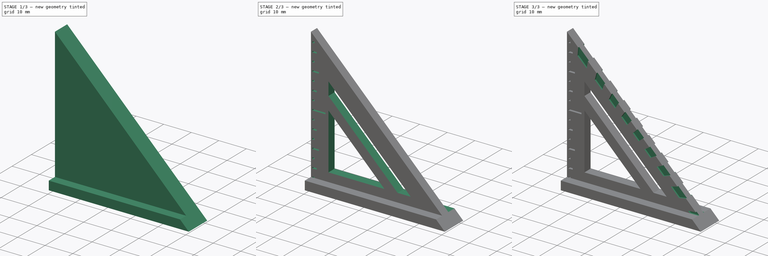
[diagram: build sequence overview — one tinted view per stage of 3, left to right]
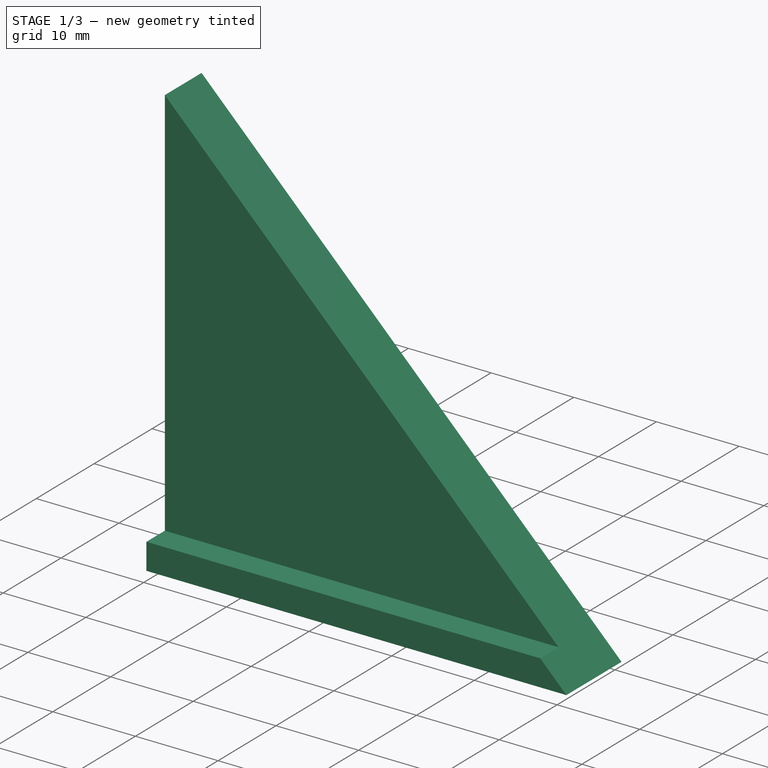
[diagram: stage 1 of 3 — iso view after this stage's code; geometry added in this stage tinted green]
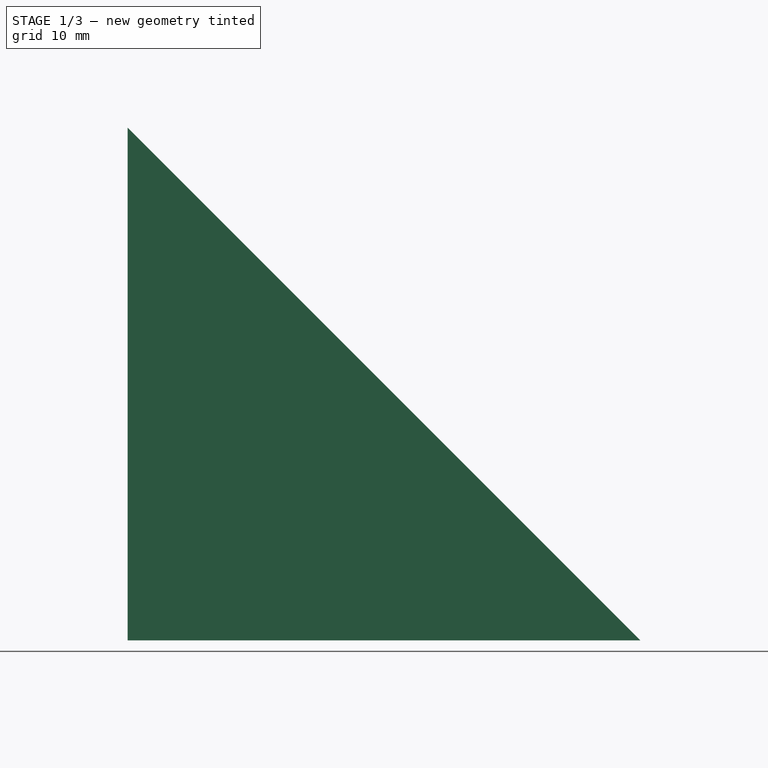
[diagram: stage 1 of 3 — front view after this stage's code; geometry added in this stage tinted green]
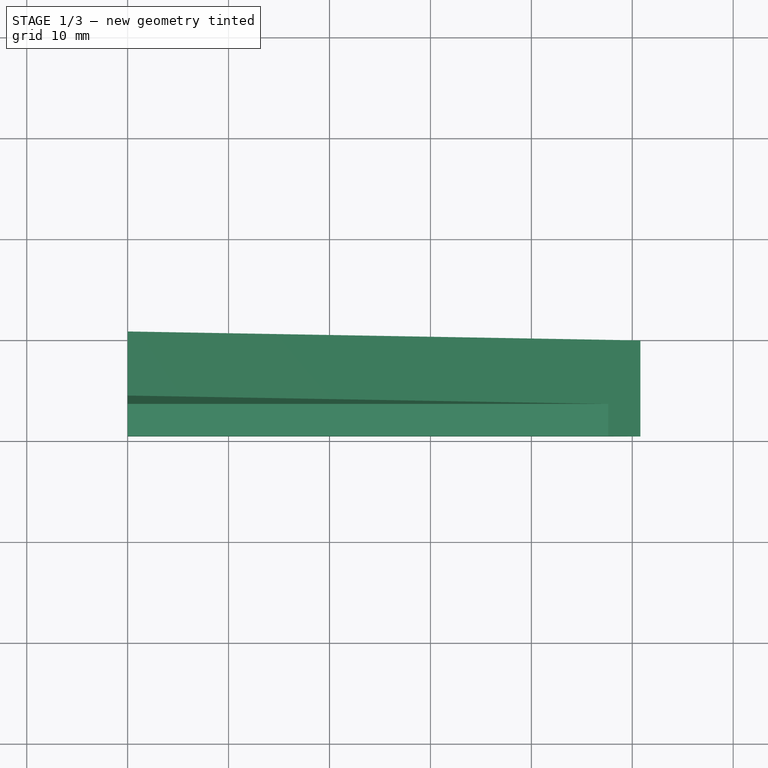
[diagram: stage 1 of 3 — top view after this stage's code; geometry added in this stage tinted green]
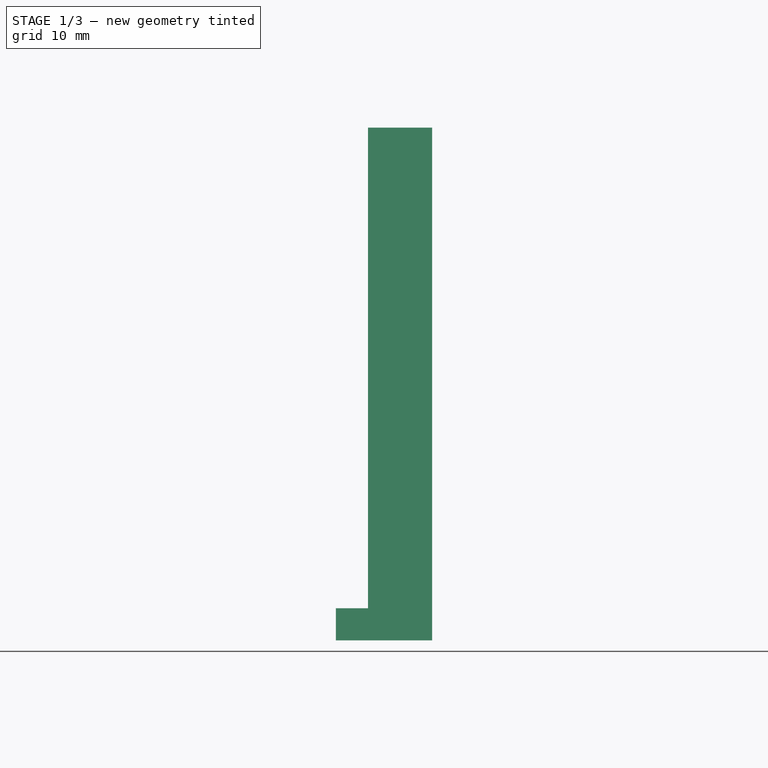
[diagram: stage 1 of 3 — right view after this stage's code; geometry added in this stage tinted green]
FCSTD DOCUMENT  (FreeCAD 0.20R29410 (Git))
Label: keychain-speedsquare
License: All rights reserved
LicenseURL: http://en.wikipedia.org/wiki/All_rights_reserved
objects: Sketcher::SketchObject×7, PartDesign::Pocket×6, Spreadsheet::Sheet×1, PartDesign::Pad×1, PartDesign::Body×1
note: 22 computed .brp shape members not serialized (recipe doc carries the construction recipe); baked Part::Feature solids carry a one-line shape summary decoded from their .brp

FEATURE [Sketcher::SketchObject] Sketch
  FullyConstrained = true
  MapMode = 5
  Placement = pos=(0,0,0) rot=(1,0,0;1.5708rad)
  Support = -> [XZ_Plane001]
  expr: Constraints[3] = <<P>>.side_length
  expr: Constraints[4] = <<P>>.side_length
  sketch-geometry (3):
    g0: LineSegment StartX=0 StartY=0 StartZ=0 EndX=50.8 EndY=0 EndZ=0
    g1: LineSegment StartX=50.8 StartY=0 StartZ=0 EndX=0 EndY=50.8 EndZ=0
    g2: LineSegment StartX=0 StartY=50.8 StartZ=0 EndX=0 EndY=0 EndZ=0
  constraints (8):
    c: Horizontal(g0)
    c: Coincident(g0,g1)
    c: Coincident(g1,g2)
    c: Vertical(g2) = 50.8
    c: Coincident(g2,g0) = 50.8
    c: DistanceX(g0,g0) = 50.8
    c: DistanceY(g2,g2) = 50.8
    c: Coincident(g0,g-1)
FEATURE [Spreadsheet::Sheet] Spreadsheet  label="P"
  cells = A1=in2mm; B1(in2mm)=25.4; A2=side_length; B2(side_length)==2 * in2mm; A3=foot_width; B3(foot_width)==body_width * 3; A4=foot_thickness; B4(foot_thickness)==0.125 * in2mm; A5=body_width; B5(body_width)==0.125 * in2mm; A6=tick_length; B6(tick_length)==1 / 8 * in2mm; A7=tick_width; B7(tick_width)=0.5; A8=tick_depth; B8(tick_depth)=0.5
FEATURE [PartDesign::Pad] Pad
  Direction = (0,-1,-2e-16)
  Length = 9.525
  Length2 = 10
  Placement = pos=(0,0,0) rot=(1,0,0;1.5708rad)
  Profile = -> Sketch
  ReferenceAxis = -> Sketch [N_Axis]
  Type = 0
  expr: Length = <<P>>.foot_width
FEATURE [Sketcher::SketchObject] Sketch001
  FullyConstrained = true
  MapMode = 5
  Placement = pos=(0,-9.525,0) rot=(1,0,0;1.5708rad)
  Support = -> [Pad]
  expr: Constraints[11] = <<P>>.foot_thickness
  expr: Constraints[8] = <<P>>.side_length
  expr: Constraints[9] = <<P>>.side_length
  sketch-geometry (4):
    g0: LineSegment StartX=0 StartY=53.975 StartZ=0 EndX=50.8 EndY=53.975 EndZ=0
    g1: LineSegment StartX=50.8 StartY=53.975 StartZ=0 EndX=50.8 EndY=3.175 EndZ=0
    g2: LineSegment StartX=50.8 StartY=3.175 StartZ=0 EndX=0 EndY=3.175 EndZ=0
    g3: LineSegment StartX=0 StartY=3.175 StartZ=0 EndX=0 EndY=53.975 EndZ=0
  constraints (12):
    c: Coincident(g0,g1)
    c: Coincident(g1,g2)
    c: Coincident(g2,g3)
    c: Coincident(g3,g0)
    c: Horizontal(g0)
    c: Horizontal(g2)
    c: Vertical(g1)
    c: Vertical(g3)
    c: DistanceX(g0,g0) = 50.8
    c: DistanceY(g1,g1) = 50.8
    c: DistanceX(g-1,g2) = 0
    c: DistanceY(g-1,g2) = 3.175
FEATURE [PartDesign::Pocket] Pocket
  BaseFeature = -> Pad
  Direction = (0,1,2e-16)
  Length = 3.175
  Length2 = 5
  Placement = pos=(0,0,0) rot=(1,0,0;1.5708rad)
  Profile = -> Sketch001
  ReferenceAxis = -> Sketch001 [N_Axis]
  Type = 0
  expr: Length = 0.5 * (<<P>>.foot_width - <<P>>.body_width)
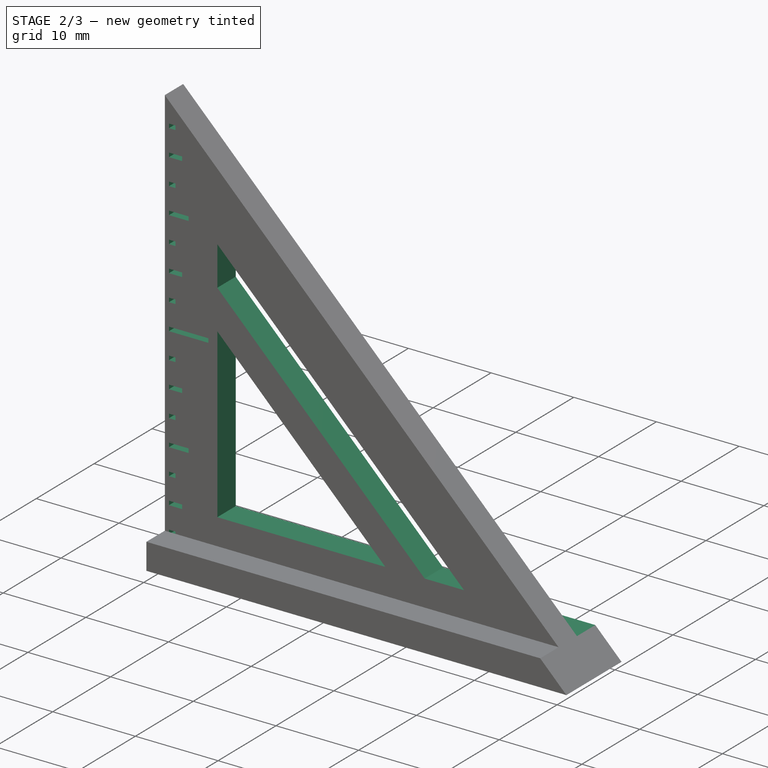
[diagram: stage 2 of 3 — iso view after this stage's code; geometry added in this stage tinted green]
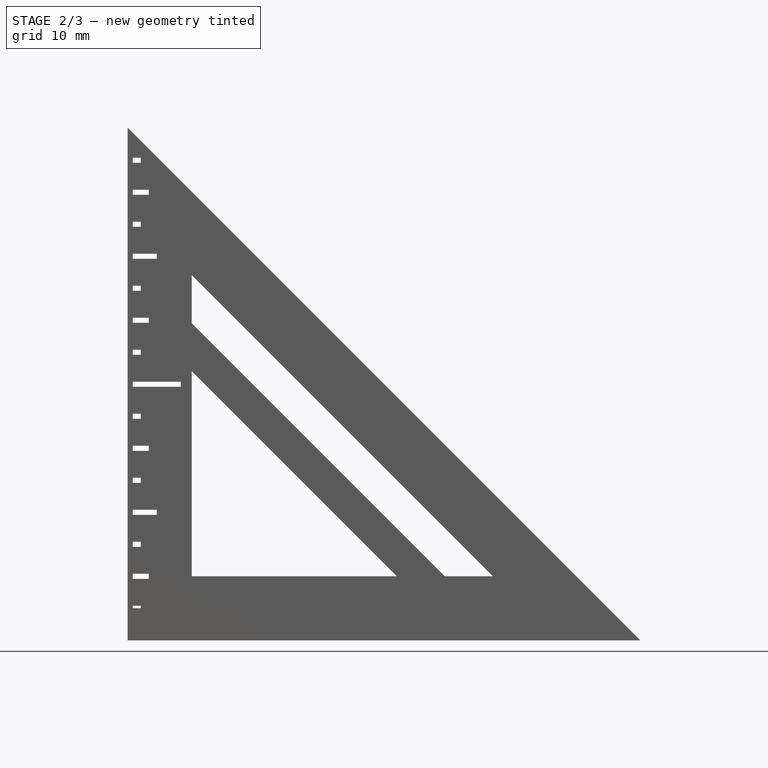
[diagram: stage 2 of 3 — front view after this stage's code; geometry added in this stage tinted green]
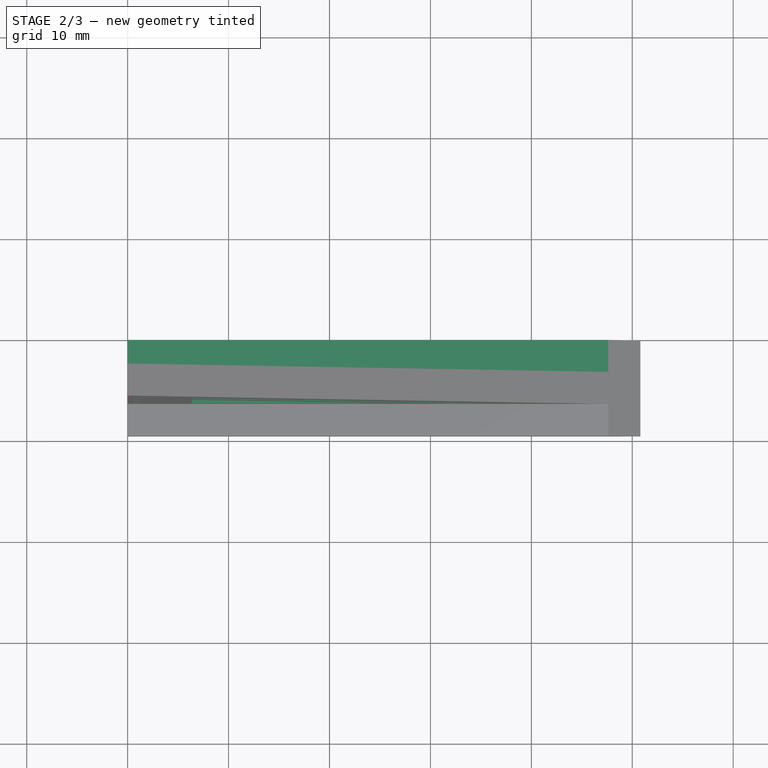
[diagram: stage 2 of 3 — top view after this stage's code; geometry added in this stage tinted green]
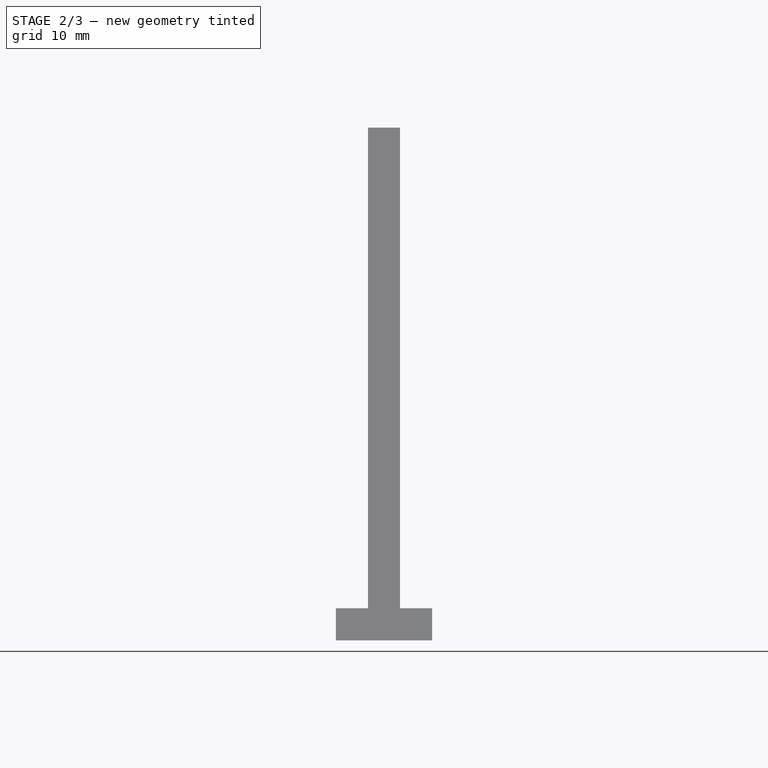
[diagram: stage 2 of 3 — right view after this stage's code; geometry added in this stage tinted green]
FEATURE [Sketcher::SketchObject] Sketch002
  FullyConstrained = true
  MapMode = 5
  Placement = pos=(0,0,0) rot=(-1,0,0;1.5708rad)
  Support = -> [Pocket]
  expr: Constraints[10] = <<P>>.side_length
  expr: Constraints[11] = <<P>>.side_length
  expr: Constraints[8] = <<P>>.foot_thickness
  sketch-geometry (4):
    g0: LineSegment StartX=50.8 StartY=-53.975 StartZ=0 EndX=0 EndY=-53.975 EndZ=0
    g1: LineSegment StartX=0 StartY=-53.975 StartZ=0 EndX=0 EndY=-3.175 EndZ=0
    g2: LineSegment StartX=0 StartY=-3.175 StartZ=0 EndX=50.8 EndY=-3.175 EndZ=0
    g3: LineSegment StartX=50.8 StartY=-3.175 StartZ=0 EndX=50.8 EndY=-53.975 EndZ=0
  constraints (12):
    c: Coincident(g0,g1)
    c: Coincident(g1,g2)
    c: Coincident(g2,g3)
    c: Coincident(g3,g0)
    c: Horizontal(g0)
    c: Horizontal(g2)
    c: Vertical(g1)
    c: Vertical(g3)
    c: DistanceY(g1,g-1) = 3.175
    c: DistanceX(g-1,g1) = 0
    c: DistanceX(g2,g2) = 50.8
    c: DistanceY(g1,g1) = 50.8
FEATURE [PartDesign::Pocket] Pocket001
  BaseFeature = -> Pocket
  Direction = (0,-1,-2e-16)
  Length = 3.175
  Length2 = 5
  Placement = pos=(0,0,0) rot=(1,0,0;1.5708rad)
  Profile = -> Sketch002
  ReferenceAxis = -> Sketch002 [N_Axis]
  Type = 0
  expr: Length = 0.5 * (<<P>>.foot_width - <<P>>.body_width)
FEATURE [Sketcher::SketchObject] Sketch003
  FullyConstrained = true
  MapMode = 5
  Placement = pos=(0,-6.35,-1e-16) rot=(1,0,0;1.5708rad)
  Support = -> [Pocket001]
  expr: Constraints[15] = <<P>>.foot_width * 0.5
  expr: Constraints[16] = <<P>>.foot_width * 0.5
  expr: Constraints[17] = <<P>>.foot_width * 0.5
  expr: Constraints[20] = <<P>>.foot_width * 0.5
  expr: Constraints[5] = <<P>>.side_length * 0.4
  expr: Constraints[6] = <<P>>.side_length * 0.4
  expr: Constraints[7] = <<P>>.foot_thickness * 2
  expr: Constraints[8] = <<P>>.foot_thickness * 2
  sketch-geometry (7):
    g0: LineSegment StartX=6.35 StartY=6.35 StartZ=0 EndX=26.67 EndY=6.35 EndZ=0
    g1: LineSegment StartX=26.67 StartY=6.35 StartZ=0 EndX=6.35 EndY=26.67 EndZ=0
    g2: LineSegment StartX=6.35 StartY=26.67 StartZ=0 EndX=6.35 EndY=6.35 EndZ=0
    g3: LineSegment StartX=6.35 StartY=31.4325 StartZ=0 EndX=6.35 EndY=36.195 EndZ=0
    g4: LineSegment StartX=6.35 StartY=36.195 StartZ=0 EndX=36.195 EndY=6.35 EndZ=0
    g5: LineSegment StartX=36.195 StartY=6.35 StartZ=0 EndX=31.4325 EndY=6.35 EndZ=0
    g6: LineSegment StartX=31.4325 StartY=6.35 StartZ=0 EndX=6.35 EndY=31.4325 EndZ=0
  constraints (21):
    c: Horizontal(g0)
    c: Coincident(g0,g1)
    c: Coincident(g1,g2)
    c: Coincident(g2,g0)
    c: Vertical(g2)
    c: DistanceX(g0,g0) = 20.32
    c: DistanceY(g2,g2) = 20.32
    c: DistanceX(g-1,g0) = 6.35
    c: DistanceY(g-1,g0) = 6.35
    c: Vertical(g3)
    c: Coincident(g3,g4)
    c: Coincident(g4,g5)
    c: Horizontal(g5)
    c: Coincident(g5,g6)
    c: Coincident(g6,g3)
    c: DistanceX(g5,g5) = 4.7625
    c: DistanceY(g3,g3) = 4.7625
    c: DistanceY(g1,g3) = 4.7625
    c: DistanceX(g1,g3) = 0
    c: DistanceY(g0,g5) = 0
    c: DistanceX(g0,g5) = 4.7625
FEATURE [PartDesign::Pocket] Pocket002
  BaseFeature = -> Pocket001
  Direction = (0,1,2e-16)
  Length = 3.175
  Length2 = 5
  Placement = pos=(0,0,0) rot=(1,0,0;1.5708rad)
  Profile = -> Sketch003
  ReferenceAxis = -> Sketch003 [N_Axis]
  Type = 0
  expr: Length = <<P>>.body_width
FEATURE [Sketcher::SketchObject] Sketch004
  FullyConstrained = false
  MapMode = 5
  Placement = pos=(0,-6.35,-1e-16) rot=(1,0,0;1.5708rad)
  Support = -> [Pocket002]
  expr: Constraints[132] = <<P>>.in2mm * 0.125
  expr: Constraints[133] = <<P>>.in2mm * 0.125
  expr: Constraints[134] = <<P>>.in2mm * 0.125
  expr: Constraints[135] = <<P>>.in2mm * 0.125
  expr: Constraints[163] = <<P>>.in2mm * 0.125
  expr: Constraints[164] = <<P>>.in2mm * 0.125
  expr: Constraints[165] = <<P>>.in2mm * 0.125
  expr: Constraints[178] = <<P>>.tick_length * 0.5
  expr: Constraints[18] = <<P>>.in2mm * 0.125
  expr: Constraints[192] = <<P>>.tick_length * 0.25
  expr: Constraints[206] = <<P>>.tick_length * 0.75
  expr: Constraints[220] = <<P>>.tick_length * 0.25
  expr: Constraints[234] = <<P>>.tick_length * 0.5
  expr: Constraints[248] = <<P>>.tick_length * 0.25
  expr: Constraints[276] = <<P>>.tick_length * 0.25
  expr: Constraints[28] = <<P>>.in2mm * 0.125
  expr: Constraints[290] = <<P>>.tick_length * 0.5
  expr: Constraints[304] = <<P>>.tick_length * 0.25
  expr: Constraints[318] = <<P>>.tick_length * 0.75
  expr: Constraints[332] = <<P>>.tick_length * 0.25
  expr: Constraints[346] = <<P>>.tick_length * 0.5
  expr: Constraints[35] = <<P>>.in2mm * 0.125
  expr: Constraints[360] = <<P>>.tick_length * 0.25
  expr: Constraints[45] = <<P>>.in2mm * 0.125
  expr: Constraints[55] = <<P>>.in2mm * 0.125
  expr: Constraints[65] = <<P>>.in2mm * 0.125
  expr: Constraints[8] = <<P>>.tick_length * 0.25
  expr: Constraints[92] = <<P>>.in2mm * 0.125
  expr: Constraints[93] = <<P>>.in2mm * 0.125
  expr: Constraints[95] = <<P>>.in2mm * 0.125
  expr: Constraints[9] = <<P>>.tick_width
  sketch-geometry (138):
    g0: LineSegment StartX=0.5 StartY=3.425 StartZ=0 EndX=1.29375 EndY=3.425 EndZ=0
    g1: LineSegment StartX=1.29375 StartY=3.425 StartZ=0 EndX=1.29375 EndY=2.925 EndZ=0
    g2: LineSegment StartX=1.29375 StartY=2.925 StartZ=0 EndX=0.5 EndY=2.925 EndZ=0
    g3: LineSegment StartX=0.5 StartY=2.925 StartZ=0 EndX=0.5 EndY=3.425 EndZ=0
    g4: LineSegment StartX=-4.37903 StartY=3.175 StartZ=0 EndX=0 EndY=3.175 EndZ=0
    g5: LineSegment StartX=0 StartY=3.175 StartZ=0 EndX=0 EndY=0 EndZ=0
    g6: LineSegment StartX=0 StartY=0 StartZ=0 EndX=-4.37903 EndY=0 EndZ=0
    g7: LineSegment StartX=-4.37903 StartY=0 StartZ=0 EndX=-4.37903 EndY=3.175 EndZ=0
    g8: LineSegment StartX=-4.37903 StartY=3.175 StartZ=0 EndX=-0.012327 EndY=3.175 EndZ=0
    g9: LineSegment StartX=-0.012327 StartY=3.175 StartZ=0 EndX=-0.012327 EndY=6.35 EndZ=0
    g10: LineSegment StartX=-0.012327 StartY=6.35 StartZ=0 EndX=-4.37903 EndY=6.35 EndZ=0
    g11: LineSegment StartX=-4.37903 StartY=6.35 StartZ=0 EndX=-4.37903 EndY=3.175 EndZ=0
    g12: LineSegment StartX=-4.37903 StartY=6.35 StartZ=0 EndX=-0.012327 EndY=6.35 EndZ=0
    g13: LineSegment StartX=-0.012327 StartY=6.35 StartZ=0 EndX=-0.012327 EndY=9.525 EndZ=0
    g14: LineSegment StartX=-0.012327 StartY=9.525 StartZ=0 EndX=-4.37903 EndY=9.525 EndZ=0
    g15: LineSegment StartX=-4.37903 StartY=9.525 StartZ=0 EndX=-4.37903 EndY=6.35 EndZ=0
    g16: LineSegment StartX=-4.37903 StartY=9.525 StartZ=0 EndX=0.114774 EndY=9.525 EndZ=0
    g17: LineSegment StartX=0.114774 StartY=9.525 StartZ=0 EndX=0.114774 EndY=12.7 EndZ=0
    g18: LineSegment StartX=0.114774 StartY=12.7 StartZ=0 EndX=-4.37903 EndY=12.7 EndZ=0
    g19: LineSegment StartX=-4.37903 StartY=12.7 StartZ=0 EndX=-4.37903 EndY=9.525 EndZ=0
    g20: LineSegment StartX=-4.37903 StartY=12.7 StartZ=0 EndX=0.199509 EndY=12.7 EndZ=0
    g21: LineSegment StartX=0.199509 StartY=12.7 StartZ=0 EndX=0.199509 EndY=15.875 EndZ=0
    g22: LineSegment StartX=0.199509 StartY=15.875 StartZ=0 EndX=-4.37903 EndY=15.875 EndZ=0
    g23: LineSegment StartX=-4.37903 StartY=15.875 StartZ=0 EndX=-4.37903 EndY=12.7 EndZ=0
    g24: LineSegment StartX=-4.37903 StartY=15.875 StartZ=0 EndX=-0.152026 EndY=15.875 EndZ=0
    g25: LineSegment StartX=-0.152026 StartY=15.875 StartZ=0 EndX=-0.152026 EndY=19.05 EndZ=0
    g26: LineSegment StartX=-0.152026 StartY=19.05 StartZ=0 EndX=-4.37903 EndY=19.05 EndZ=0
    g27: LineSegment StartX=-4.37903 StartY=19.05 StartZ=0 EndX=-4.37903 EndY=15.875 EndZ=0
    g28: LineSegment StartX=-4.37903 StartY=19.05 StartZ=0 EndX=-0.115682 EndY=19.05 EndZ=0
    g29: LineSegment StartX=-0.115682 StartY=19.05 StartZ=0 EndX=-0.115682 EndY=22.225 EndZ=0
    g30: LineSegment StartX=-0.115682 StartY=22.225 StartZ=0 EndX=-4.37903 EndY=22.225 EndZ=0
    g31: LineSegment StartX=-4.37903 StartY=22.225 StartZ=0 EndX=-4.37903 EndY=19.05 EndZ=0
    g32: LineSegment StartX=-4.37903 StartY=22.225 StartZ=0 EndX=-0.079337 EndY=22.225 EndZ=0
    g33: LineSegment StartX=-0.079337 StartY=22.225 StartZ=0 EndX=-0.079337 EndY=25.4 EndZ=0
    g34: LineSegment StartX=-0.079337 StartY=25.4 StartZ=0 EndX=-4.37903 EndY=25.4 EndZ=0
    g35: LineSegment StartX=-4.37903 StartY=25.4 StartZ=0 EndX=-4.37903 EndY=22.225 EndZ=0
    g36: LineSegment StartX=-4.37903 StartY=25.4 StartZ=0 EndX=-0.042995 EndY=25.4 EndZ=0
    g37: LineSegment StartX=-0.042995 StartY=25.4 StartZ=0 EndX=-0.042995 EndY=28.575 EndZ=0
    g38: LineSegment StartX=-0.042995 StartY=28.575 StartZ=0 EndX=-4.37903 EndY=28.575 EndZ=0
    g39: LineSegment StartX=-4.37903 StartY=28.575 StartZ=0 EndX=-4.37903 EndY=25.4 EndZ=0
    g40: LineSegment StartX=-4.37903 StartY=28.575 StartZ=0 EndX=-0.071006 EndY=28.575 EndZ=0
    g41: LineSegment StartX=-0.071006 StartY=28.575 StartZ=0 EndX=-0.071006 EndY=31.75 EndZ=0
    g42: LineSegment StartX=-0.071006 StartY=31.75 StartZ=0 EndX=-4.37903 EndY=31.75 EndZ=0
    g43: LineSegment StartX=-4.37903 StartY=31.75 StartZ=0 EndX=-4.37903 EndY=28.575 EndZ=0
    g44: LineSegment StartX=-4.37903 StartY=31.75 StartZ=0 EndX=-0.071006 EndY=31.75 EndZ=0
    g45: LineSegment StartX=-0.071006 StartY=31.75 StartZ=0 EndX=-0.071006 EndY=34.925 EndZ=0
    g46: LineSegment StartX=-0.071006 StartY=34.925 StartZ=0 EndX=-4.37903 EndY=34.925 EndZ=0
    g47: LineSegment StartX=-4.37903 StartY=34.925 StartZ=0 EndX=-4.37903 EndY=31.75 EndZ=0
    g48: LineSegment StartX=-4.37903 StartY=34.925 StartZ=0 EndX=0.32086 EndY=34.925 EndZ=0
    g49: LineSegment StartX=0.32086 StartY=34.925 StartZ=0 EndX=0.32086 EndY=38.1 EndZ=0
    g50: LineSegment StartX=0.32086 StartY=38.1 StartZ=0 EndX=-4.37903 EndY=38.1 EndZ=0
    g51: LineSegment StartX=-4.37903 StartY=38.1 StartZ=0 EndX=-4.37903 EndY=34.925 EndZ=0
    g52: LineSegment StartX=-4.37903 StartY=38.1 StartZ=0 EndX=-0.213504 EndY=38.1 EndZ=0
    g53: LineSegment StartX=-0.213504 StartY=38.1 StartZ=0 EndX=-0.213504 EndY=41.275 EndZ=0
    g54: LineSegment StartX=-0.213504 StartY=41.275 StartZ=0 EndX=-4.37903 EndY=41.275 EndZ=0
    g55: LineSegment StartX=-4.37903 StartY=41.275 StartZ=0 EndX=-4.37903 EndY=38.1 EndZ=0
    g56: LineSegment StartX=-4.37903 StartY=41.275 StartZ=0 EndX=-0.213504 EndY=41.275 EndZ=0
    g57: LineSegment StartX=-0.213504 StartY=41.275 StartZ=0 EndX=-0.213504 EndY=44.45 EndZ=0
    g58: LineSegment StartX=-0.213504 StartY=44.45 StartZ=0 EndX=-4.37903 EndY=44.45 EndZ=0
    g59: LineSegment StartX=-4.37903 StartY=44.45 StartZ=0 EndX=-4.37903 EndY=41.275 EndZ=0
    g60: LineSegment StartX=-4.37903 StartY=44.45 StartZ=0 EndX=-0.177879 EndY=44.45 EndZ=0
    g61: LineSegment StartX=-0.177879 StartY=44.45 StartZ=0 EndX=-0.177879 EndY=47.625 EndZ=0
    g62: LineSegment StartX=-0.177879 StartY=47.625 StartZ=0 EndX=-4.37903 EndY=47.625 EndZ=0
    g63: LineSegment StartX=-4.37903 StartY=47.625 StartZ=0 EndX=-4.37903 EndY=44.45 EndZ=0
    g64: LineSegment StartX=-4.37903 StartY=47.625 StartZ=0 EndX=-0.249127 EndY=47.625 EndZ=0
    g65: LineSegment StartX=-0.249127 StartY=47.625 StartZ=0 EndX=-0.249127 EndY=50.8 EndZ=0
    g66: LineSegment StartX=-0.249127 StartY=50.8 StartZ=0 EndX=-4.37903 EndY=50.8 EndZ=0
    g67: LineSegment StartX=-4.37903 StartY=50.8 StartZ=0 EndX=-4.37903 EndY=47.625 EndZ=0
    g68: LineSegment StartX=0.500115 StartY=6.59603 StartZ=0 EndX=2.08761 EndY=6.59603 EndZ=0
    g69: LineSegment StartX=2.08761 StartY=6.59603 StartZ=0 EndX=2.08761 EndY=6.09603 EndZ=0
    g70: LineSegment StartX=2.08761 StartY=6.09603 StartZ=0 EndX=0.500115 EndY=6.09603 EndZ=0
    g71: LineSegment StartX=0.500115 StartY=6.09603 StartZ=0 EndX=0.500115 EndY=6.59603 EndZ=0
    g72: LineSegment StartX=0.5 StartY=3.425 StartZ=0 EndX=0.500115 EndY=6.59603 EndZ=0
    g73: LineSegment StartX=0.50023 StartY=9.76706 StartZ=0 EndX=1.29398 EndY=9.76706 EndZ=0
    g74: LineSegment StartX=1.29398 StartY=9.76706 StartZ=0 EndX=1.29398 EndY=9.26706 EndZ=0
    g75: LineSegment StartX=1.29398 StartY=9.26706 StartZ=0 EndX=0.50023 EndY=9.26706 EndZ=0
    g76: LineSegment StartX=0.50023 StartY=9.26706 StartZ=0 EndX=0.50023 EndY=9.76706 EndZ=0
    g77: LineSegment StartX=0.500115 StartY=6.59603 StartZ=0 EndX=0.50023 EndY=9.76706 EndZ=0
    g78: LineSegment StartX=0.500345 StartY=12.9381 StartZ=0 EndX=2.88159 EndY=12.9381 EndZ=0
    g79: LineSegment StartX=2.88159 StartY=12.9381 StartZ=0 EndX=2.88159 EndY=12.4381 EndZ=0
    g80: LineSegment StartX=2.88159 StartY=12.4381 StartZ=0 EndX=0.500345 EndY=12.4381 EndZ=0
    g81: LineSegment StartX=0.500345 StartY=12.4381 StartZ=0 EndX=0.500345 EndY=12.9381 EndZ=0
    g82: LineSegment StartX=0.50023 StartY=9.76706 StartZ=0 EndX=0.500345 EndY=12.9381 EndZ=0
    g83: LineSegment StartX=0.50046 StartY=16.1091 StartZ=0 EndX=1.29421 EndY=16.1091 EndZ=0
    g84: LineSegment StartX=1.29421 StartY=16.1091 StartZ=0 EndX=1.29421 EndY=15.6091 EndZ=0
    g85: LineSegment StartX=1.29421 StartY=15.6091 StartZ=0 EndX=0.50046 EndY=15.6091 EndZ=0
    g86: LineSegment StartX=0.50046 StartY=15.6091 StartZ=0 EndX=0.50046 EndY=16.1091 EndZ=0
    g87: LineSegment StartX=0.500345 StartY=12.9381 StartZ=0 EndX=0.50046 EndY=16.1091 EndZ=0
    g88: LineSegment StartX=0.500575 StartY=19.2801 StartZ=0 EndX=2.08807 EndY=19.2801 EndZ=0
    g89: LineSegment StartX=2.08807 StartY=19.2801 StartZ=0 EndX=2.08807 EndY=18.7801 EndZ=0
    g90: LineSegment StartX=2.08807 StartY=18.7801 StartZ=0 EndX=0.500575 EndY=18.7801 EndZ=0
    g91: LineSegment StartX=0.500575 StartY=18.7801 StartZ=0 EndX=0.500575 EndY=19.2801 EndZ=0
    g92: LineSegment StartX=0.50046 StartY=16.1091 StartZ=0 EndX=0.500575 EndY=19.2801 EndZ=0
    g93: LineSegment StartX=0.50069 StartY=22.4512 StartZ=0 EndX=1.29444 EndY=22.4512 EndZ=0
    g94: LineSegment StartX=1.29444 StartY=22.4512 StartZ=0 EndX=1.29444 EndY=21.9512 EndZ=0
    g95: LineSegment StartX=1.29444 StartY=21.9512 StartZ=0 EndX=0.50069 EndY=21.9512 EndZ=0
    g96: LineSegment StartX=0.50069 StartY=21.9512 StartZ=0 EndX=0.50069 EndY=22.4512 EndZ=0
    g97: LineSegment StartX=0.500575 StartY=19.2801 StartZ=0 EndX=0.50069 EndY=22.4512 EndZ=0
    g98: LineSegment StartX=0.500805 StartY=25.6222 StartZ=0 EndX=5.2633 EndY=25.6222 EndZ=0
    g99: LineSegment StartX=5.2633 StartY=25.6222 StartZ=0 EndX=5.2633 EndY=25.1222 EndZ=0
    g100: LineSegment StartX=5.2633 StartY=25.1222 StartZ=0 EndX=0.500805 EndY=25.1222 EndZ=0
    g101: LineSegment StartX=0.500805 StartY=25.1222 StartZ=0 EndX=0.500805 EndY=25.6222 EndZ=0
    g102: LineSegment StartX=0.50069 StartY=22.4512 StartZ=0 EndX=0.500805 EndY=25.6222 EndZ=0
    g103: LineSegment StartX=0.50092 StartY=28.7932 StartZ=0 EndX=1.29467 EndY=28.7932 EndZ=0
    g104: LineSegment StartX=1.29467 StartY=28.7932 StartZ=0 EndX=1.29467 EndY=28.2932 EndZ=0
    g105: LineSegment StartX=1.29467 StartY=28.2932 StartZ=0 EndX=0.50092 EndY=28.2932 EndZ=0
    g106: LineSegment StartX=0.50092 StartY=28.2932 StartZ=0 EndX=0.50092 EndY=28.7932 EndZ=0
    g107: LineSegment StartX=0.500805 StartY=25.6222 StartZ=0 EndX=0.50092 EndY=28.7932 EndZ=0
    g108: LineSegment StartX=0.501035 StartY=31.9643 StartZ=0 EndX=2.08853 EndY=31.9643 EndZ=0
    g109: LineSegment StartX=2.08853 StartY=31.9643 StartZ=0 EndX=2.08853 EndY=31.4643 EndZ=0
    g110: LineSegment StartX=2.08853 StartY=31.4643 StartZ=0 EndX=0.501035 EndY=31.4643 EndZ=0
    g111: LineSegment StartX=0.501035 StartY=31.4643 StartZ=0 EndX=0.501035 EndY=31.9643 EndZ=0
    g112: LineSegment StartX=0.50092 StartY=28.7932 StartZ=0 EndX=0.501035 EndY=31.9643 EndZ=0
    g113: LineSegment StartX=0.50115 StartY=35.1353 StartZ=0 EndX=1.2949 EndY=35.1353 EndZ=0
    g114: LineSegment StartX=1.2949 StartY=35.1353 StartZ=0 EndX=1.2949 EndY=34.6353 EndZ=0
    g115: LineSegment StartX=1.2949 StartY=34.6353 StartZ=0 EndX=0.50115 EndY=34.6353 EndZ=0
    g116: LineSegment StartX=0.50115 StartY=34.6353 StartZ=0 EndX=0.50115 EndY=35.1353 EndZ=0
    g117: LineSegment StartX=0.501035 StartY=31.9643 StartZ=0 EndX=0.50115 EndY=35.1353 EndZ=0
    g118: LineSegment StartX=0.501265 StartY=38.3063 StartZ=0 EndX=2.88251 EndY=38.3063 EndZ=0
    g119: LineSegment StartX=2.88251 StartY=38.3063 StartZ=0 EndX=2.88251 EndY=37.8063 EndZ=0
    g120: LineSegment StartX=2.88251 StartY=37.8063 StartZ=0 EndX=0.501265 EndY=37.8063 EndZ=0
    g121: LineSegment StartX=0.501265 StartY=37.8063 StartZ=0 EndX=0.501265 EndY=38.3063 EndZ=0
    g122: LineSegment StartX=0.50115 StartY=35.1353 StartZ=0 EndX=0.501265 EndY=38.3063 EndZ=0
    g123: LineSegment StartX=0.50138 StartY=41.4773 StartZ=0 EndX=1.29513 EndY=41.4773 EndZ=0
    g124: LineSegment StartX=1.29513 StartY=41.4773 StartZ=0 EndX=1.29513 EndY=40.9773 EndZ=0
    g125: LineSegment StartX=1.29513 StartY=40.9773 StartZ=0 EndX=0.50138 EndY=40.9773 EndZ=0
    g126: LineSegment StartX=0.50138 StartY=40.9773 StartZ=0 EndX=0.50138 EndY=41.4773 EndZ=0
    g127: LineSegment StartX=0.501265 StartY=38.3063 StartZ=0 EndX=0.50138 EndY=41.4773 EndZ=0
    g128: LineSegment StartX=0.501495 StartY=44.6484 StartZ=0 EndX=2.08899 EndY=44.6484 EndZ=0
    g129: LineSegment StartX=2.08899 StartY=44.6484 StartZ=0 EndX=2.08899 EndY=44.1484 EndZ=0
    g130: LineSegment StartX=2.08899 StartY=44.1484 StartZ=0 EndX=0.501495 EndY=44.1484 EndZ=0
    g131: LineSegment StartX=0.501495 StartY=44.1484 StartZ=0 EndX=0.501495 EndY=44.6484 EndZ=0
    g132: LineSegment StartX=0.50138 StartY=41.4773 StartZ=0 EndX=0.501495 EndY=44.6484 EndZ=0
    g133: LineSegment StartX=0.50161 StartY=47.8194 StartZ=0 EndX=1.29536 EndY=47.8194 EndZ=0
    g134: LineSegment StartX=1.29536 StartY=47.8194 StartZ=0 EndX=1.29536 EndY=47.3194 EndZ=0
    g135: LineSegment StartX=1.29536 StartY=47.3194 StartZ=0 EndX=0.50161 EndY=47.3194 EndZ=0
    g136: LineSegment StartX=0.50161 StartY=47.3194 StartZ=0 EndX=0.50161 EndY=47.8194 EndZ=0
    g137: LineSegment StartX=0.501495 StartY=44.6484 StartZ=0 EndX=0.50161 EndY=47.8194 EndZ=0
  constraints (367):
    c: Coincident(g0,g1)
    c: Coincident(g1,g2)
    c: Coincident(g2,g3)
    c: Coincident(g3,g0)
    c: Horizontal(g0)
    c: Horizontal(g2)
    c: Vertical(g1)
    c: Vertical(g3)
    c: DistanceX(g0,g0) = 0.79375
    c: DistanceY(g1,g1) = 0.5
    c: Coincident(g4,g5)
    c: Coincident(g5,g6)
    c: Coincident(g6,g7)
    c: Coincident(g7,g4)
    c: Horizontal(g6)
    c: Vertical(g5)
    c: Vertical(g7)
    c: Coincident(g5,g-1)
    c: DistanceY(g7,g7) = 3.175
    c: Coincident(g8,g9)
    c: Coincident(g9,g10)
    c: Coincident(g10,g11)
    c: Coincident(g11,g8)
    c: Horizontal(g8)
    c: Horizontal(g10)
    c: Vertical(g9)
    c: Vertical(g11)
    c: Coincident(g8,g4)
    c: DistanceY(g11,g11) = 3.175
    c: Coincident(g12,g13)
    c: Coincident(g13,g14)
    c: Coincident(g14,g15)
    c: Coincident(g15,g12)
    c: Horizontal(g14)
    c: Vertical(g13)
    c: Vertical(g15) = 3.175
    c: Coincident(g12,g10)
    c: DistanceY(g15,g15) = 3.175
    c: Coincident(g16,g17)
    c: Coincident(g17,g18)
    c: Coincident(g18,g19)
    c: Coincident(g19,g16)
    c: Horizontal(g16)
    c: Horizontal(g18)
    c: Vertical(g17)
    c: Vertical(g19) = 3.175
    c: Coincident(g16,g14)
    c: DistanceY(g19,g19) = 3.175
    c: Coincident(g20,g21)
    c: Coincident(g21,g22)
    c: Coincident(g22,g23)
    c: Coincident(g23,g20)
    c: Horizontal(g20)
    c: Horizontal(g22)
    c: Vertical(g21)
    c: Vertical(g23) = 3.175
    c: Coincident(g20,g18)
    c: DistanceY(g23,g23) = 3.175
    c: Coincident(g24,g25)
    c: Coincident(g25,g26)
    c: Coincident(g26,g27)
    c: Coincident(g27,g24)
    c: Horizontal(g24)
    c: Horizontal(g26)
    c: Vertical(g25)
    c: Vertical(g27) = 3.175
    c: Coincident(g24,g22)
    c: DistanceY(g27,g27) = 3.175
    c: Coincident(g28,g29)
    c: Coincident(g29,g30)
    c: Coincident(g30,g31)
    c: Coincident(g31,g28)
    c: Horizontal(g28)
    c: Horizontal(g30)
    c: Vertical(g29)
    c: Vertical(g31)
    c: Coincident(g28,g26)
    c: Coincident(g32,g33)
    c: Coincident(g33,g34)
    c: Coincident(g34,g35)
    c: Coincident(g35,g32)
    c: Horizontal(g32)
    c: Horizontal(g34)
    c: Vertical(g33)
    c: Vertical(g35)
    c: Coincident(g32,g30)
    c: Coincident(g36,g37)
    c: Coincident(g37,g38)
    c: Coincident(g38,g39)
    c: Coincident(g39,g36)
    c: Horizontal(g36)
    c: Horizontal(g38)
    c: Vertical(g37) = 3.175
    c: Vertical(g39) = 3.175
    c: DistanceY(g31,g31) = 3.175
    c: DistanceY(g35,g35) = 3.175
    c: Coincident(g36,g34)
    c: DistanceY(g39,g39) = 3.175
    c: Coincident(g40,g41)
    c: Coincident(g41,g42)
    c: Coincident(g42,g43)
    c: Coincident(g43,g40)
    c: Horizontal(g40)
    c: Horizontal(g42)
    c: Vertical(g41)
    c: Vertical(g43)
    c: Coincident(g40,g38)
    c: Coincident(g44,g45)
    c: Coincident(g45,g46)
    c: Coincident(g46,g47)
    c: Coincident(g47,g44)
    c: Horizontal(g44)
    c: Horizontal(g46)
    c: Vertical(g45)
    c: Vertical(g47)
    c: Coincident(g44,g42)
    c: Coincident(g48,g49)
    c: Coincident(g49,g50)
    c: Coincident(g50,g51)
    c: Coincident(g51,g48)
    c: Horizontal(g48)
    c: Horizontal(g50)
    c: Vertical(g49)
    c: Vertical(g51)
    c: Coincident(g48,g46)
    c: Coincident(g52,g53)
    c: Coincident(g53,g54)
    c: Coincident(g54,g55)
    c: Coincident(g55,g52)
    c: Horizontal(g52)
    c: Horizontal(g54)
    c: Vertical(g53)
    c: Vertical(g55) = 3.175
    c: Coincident(g52,g50) = 3.175
    c: DistanceY(g43,g43) = 3.175
    c: DistanceY(g47,g47) = 3.175
    c: DistanceY(g51,g51) = 3.175
    c: DistanceY(g55,g55) = 3.175
    c: Coincident(g56,g57)
    c: Coincident(g57,g58)
    c: Coincident(g58,g59)
    c: Coincident(g59,g56)
    c: Horizontal(g56)
    c: Horizontal(g58)
    c: Vertical(g57)
    c: Vertical(g59)
    c: Coincident(g56,g54)
    c: Coincident(g60,g61)
    c: Coincident(g61,g62)
    c: Coincident(g62,g63)
    c: Coincident(g63,g60)
    c: Horizontal(g60)
    c: Horizontal(g62)
    c: Vertical(g61)
    c: Vertical(g63)
    c: Coincident(g60,g58)
    c: Coincident(g64,g65)
    c: Coincident(g65,g66)
    c: Coincident(g66,g67)
    c: Coincident(g67,g64)
    c: Horizontal(g64)
    c: Horizontal(g66)
    c: Vertical(g65)
    c: Vertical(g67) = 3.175
    c: Coincident(g64,g62) = 3.175
    c: DistanceY(g59,g59) = 3.175
    c: DistanceY(g63,g63) = 3.175
    c: DistanceY(g67,g67) = 3.175
    c: Symmetric(g0,g2,g4)
    c: DistanceX(g4,g0) = 0.5
    c: Coincident(g68,g69)
    c: Coincident(g69,g70)
    c: Coincident(g70,g71)
    c: Coincident(g71,g68)
    c: Horizontal(g68)
    c: Horizontal(g70)
    c: Vertical(g69)
    c: Vertical(g71)
    c: DistanceX(g68,g68) = 1.5875
    c: DistanceY(g69,g69) = 0.5
    c: Coincident(g0,g72)
    c: Coincident(g68,g72)
    c: Distance(g72) = 3.17103
    c: Angle(g72) = 1.57076
    c: Coincident(g73,g74)
    c: Coincident(g74,g75)
    c: Coincident(g75,g76)
    c: Coincident(g76,g73)
    c: Horizontal(g73)
    c: Horizontal(g75)
    c: Vertical(g74)
    c: Vertical(g76)
    c: DistanceX(g73,g73) = 0.79375
    c: DistanceY(g74,g74) = 0.5
    c: Coincident(g68,g77)
    c: Coincident(g73,g77)
    c: Equal(g72,g77)
    c: Parallel(g77,g72)
    c: Coincident(g78,g79)
    c: Coincident(g79,g80)
    c: Coincident(g80,g81)
    c: Coincident(g81,g78)
    c: Horizontal(g78)
    c: Horizontal(g80)
    c: Vertical(g79)
    c: Vertical(g81)
    c: DistanceX(g78,g78) = 2.38125
    c: DistanceY(g79,g79) = 0.5
    c: Coincident(g73,g82)
    c: Coincident(g78,g82)
    c: Equal(g72,g82)
    c: Parallel(g82,g72)
    c: Coincident(g83,g84)
    c: Coincident(g84,g85)
    c: Coincident(g85,g86)
    c: Coincident(g86,g83)
    c: Horizontal(g83)
    c: Horizontal(g85)
    c: Vertical(g84)
    c: Vertical(g86)
    c: DistanceX(g83,g83) = 0.79375
    c: DistanceY(g84,g84) = 0.5
    c: Coincident(g78,g87)
    c: Coincident(g83,g87)
    c: Equal(g72,g87)
    c: Parallel(g87,g72)
    c: Coincident(g88,g89)
    c: Coincident(g89,g90)
    c: Coincident(g90,g91)
    c: Coincident(g91,g88)
    c: Horizontal(g88)
    c: Horizontal(g90)
    c: Vertical(g89)
    c: Vertical(g91)
    c: DistanceX(g88,g88) = 1.5875
    c: DistanceY(g89,g89) = 0.5
    c: Coincident(g83,g92)
    c: Coincident(g88,g92)
    c: Equal(g72,g92)
    c: Parallel(g92,g72)
    c: Coincident(g93,g94)
    c: Coincident(g94,g95)
    c: Coincident(g95,g96)
    c: Coincident(g96,g93)
    c: Horizontal(g93)
    c: Horizontal(g95)
    c: Vertical(g94)
    c: Vertical(g96)
    c: DistanceX(g93,g93) = 0.79375
    c: DistanceY(g94,g94) = 0.5
    c: Coincident(g88,g97)
    c: Coincident(g93,g97)
    c: Equal(g72,g97)
    c: Parallel(g97,g72)
    c: Coincident(g98,g99)
    c: Coincident(g99,g100)
    c: Coincident(g100,g101)
    c: Coincident(g101,g98)
    c: Horizontal(g98)
    c: Horizontal(g100)
    c: Vertical(g99)
    c: Vertical(g101)
    c: DistanceX(g98,g98) = 4.7625
    c: DistanceY(g99,g99) = 0.5
    c: Coincident(g93,g102)
    c: Coincident(g98,g102)
    c: Equal(g72,g102)
    c: Parallel(g102,g72)
    c: Coincident(g103,g104)
    c: Coincident(g104,g105)
    c: Coincident(g105,g106)
    c: Coincident(g106,g103)
    c: Horizontal(g103)
    c: Horizontal(g105)
    c: Vertical(g104)
    c: Vertical(g106)
    c: DistanceX(g103,g103) = 0.79375
    c: DistanceY(g104,g104) = 0.5
    c: Coincident(g98,g107)
    c: Coincident(g103,g107)
    c: Equal(g72,g107)
    c: Parallel(g107,g72)
    c: Coincident(g108,g109)
    c: Coincident(g109,g110)
    c: Coincident(g110,g111)
    c: Coincident(g111,g108)
    c: Horizontal(g108)
    c: Horizontal(g110)
    c: Vertical(g109)
    c: Vertical(g111)
    c: DistanceX(g108,g108) = 1.5875
    c: DistanceY(g109,g109) = 0.5
    c: Coincident(g103,g112)
    c: Coincident(g108,g112)
    c: Equal(g72,g112)
    c: Parallel(g112,g72)
    c: Coincident(g113,g114)
    c: Coincident(g114,g115)
    c: Coincident(g115,g116)
    c: Coincident(g116,g113)
    c: Horizontal(g113)
    c: Horizontal(g115)
    c: Vertical(g114)
    c: Vertical(g116)
    c: DistanceX(g113,g113) = 0.79375
    c: DistanceY(g114,g114) = 0.5
    c: Coincident(g108,g117)
    c: Coincident(g113,g117)
    c: Equal(g72,g117)
    c: Parallel(g117,g72)
    c: Coincident(g118,g119)
    c: Coincident(g119,g120)
    c: Coincident(g120,g121)
    c: Coincident(g121,g118)
    c: Horizontal(g118)
    c: Horizontal(g120)
    c: Vertical(g119)
    c: Vertical(g121)
    c: DistanceX(g118,g118) = 2.38125
    c: DistanceY(g119,g119) = 0.5
    c: Coincident(g113,g122)
    c: Coincident(g118,g122)
    c: Equal(g72,g122)
    c: Parallel(g122,g72)
    c: Coincident(g123,g124)
    c: Coincident(g124,g125)
    c: Coincident(g125,g126)
    c: Coincident(g126,g123)
    c: Horizontal(g123)
    c: Horizontal(g125)
    c: Vertical(g124)
    c: Vertical(g126)
    c: DistanceX(g123,g123) = 0.79375
    c: DistanceY(g124,g124) = 0.5
    c: Coincident(g118,g127)
    c: Coincident(g123,g127)
    c: Equal(g72,g127)
    c: Parallel(g127,g72)
    c: Coincident(g128,g129)
    c: Coincident(g129,g130)
    c: Coincident(g130,g131)
    c: Coincident(g131,g128)
    c: Horizontal(g128)
    c: Horizontal(g130)
    c: Vertical(g129)
    c: Vertical(g131)
    c: DistanceX(g128,g128) = 1.5875
    c: DistanceY(g129,g129) = 0.5
    c: Coincident(g123,g132)
    c: Coincident(g128,g132)
    c: Equal(g72,g132)
    c: Parallel(g132,g72)
    c: Coincident(g133,g134)
    c: Coincident(g134,g135)
    c: Coincident(g135,g136)
    c: Coincident(g136,g133)
    c: Horizontal(g133)
    c: Horizontal(g135)
    c: Vertical(g134)
    c: Vertical(g136)
    c: DistanceX(g133,g133) = 0.79375
    c: DistanceY(g134,g134) = 0.5
    c: Coincident(g128,g137)
    c: Coincident(g133,g137)
    c: Equal(g72,g137)
    c: Parallel(g137,g72)
    c: Coincident(g13,g9)
FEATURE [PartDesign::Pocket] Pocket003
  BaseFeature = -> Pocket002
  Direction = (0,1,2e-16)
  Length = 3.175
  Length2 = 5
  Placement = pos=(0,0,0) rot=(1,0,0;1.5708rad)
  Profile = -> Sketch004
  ReferenceAxis = -> Sketch004 [N_Axis]
  Type = 0
  expr: Length = <<P>>.body_width
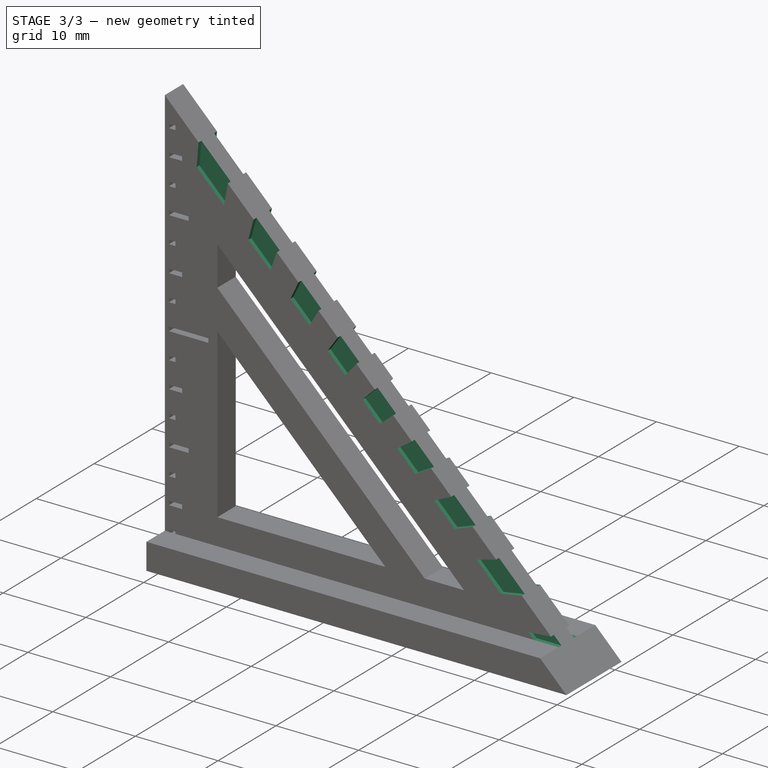
[diagram: stage 3 of 3 — iso view after this stage's code; geometry added in this stage tinted green]
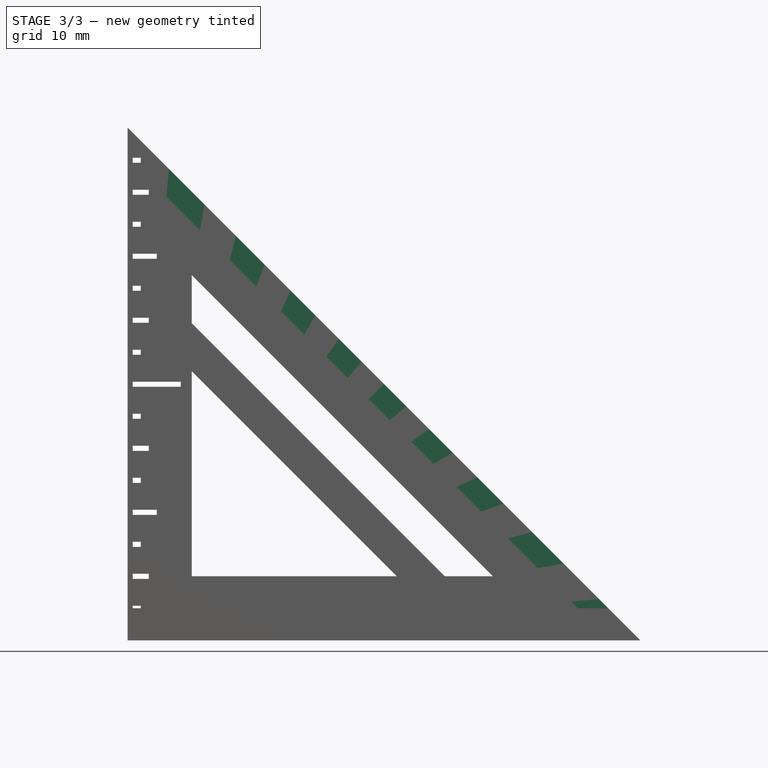
[diagram: stage 3 of 3 — front view after this stage's code; geometry added in this stage tinted green]
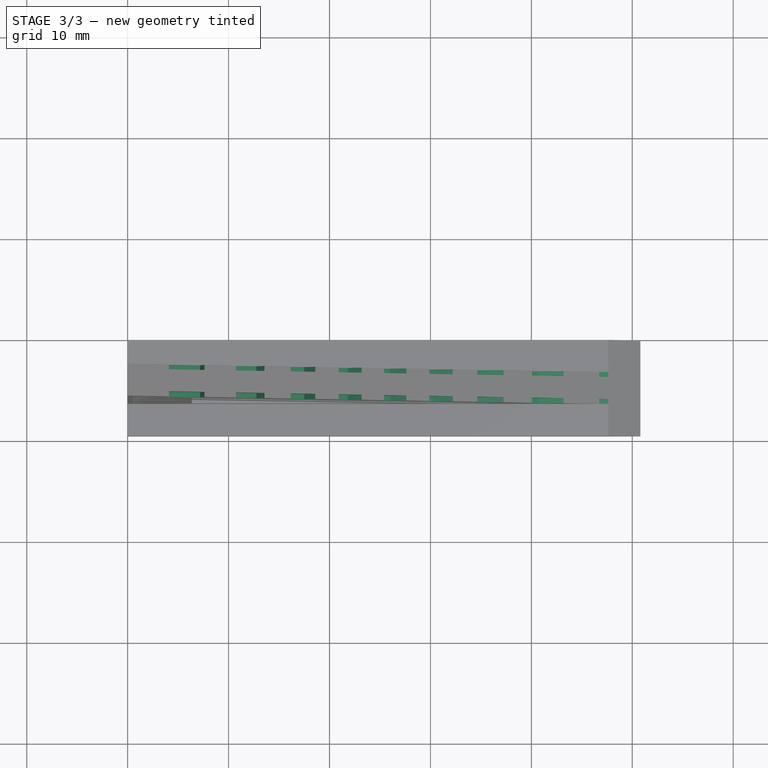
[diagram: stage 3 of 3 — top view after this stage's code; geometry added in this stage tinted green]
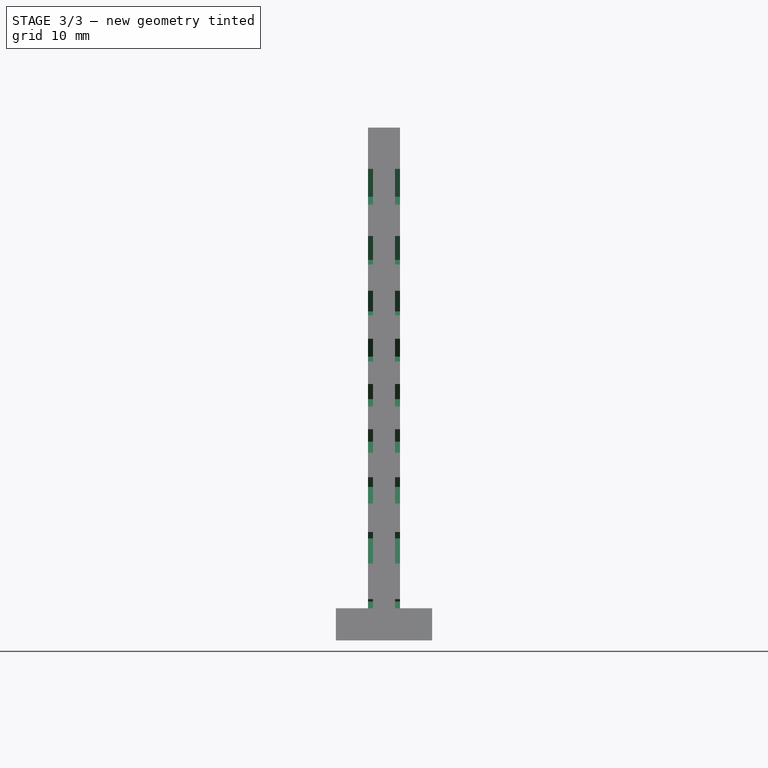
[diagram: stage 3 of 3 — right view after this stage's code; geometry added in this stage tinted green]
FEATURE [Sketcher::SketchObject] Sketch005
  FullyConstrained = true
  MapMode = 5
  Placement = pos=(0,-6.35,-1e-16) rot=(1,0,0;1.5708rad)
  Support = -> [Pocket003]
  expr: Constraints[13] = <<P>>.side_length
  expr: Constraints[14] = <<P>>.side_length
  expr: Constraints[164] = <<P>>.foot_thickness
  expr: Constraints[5] = <<P>>.side_length - 3
  expr: Constraints[6] = <<P>>.side_length - 3
  sketch-geometry (95):
    g0: LineSegment StartX=0 StartY=47.8 StartZ=0 EndX=0 EndY=0 EndZ=0
    g1: LineSegment StartX=0 StartY=0 StartZ=0 EndX=47.8 EndY=0 EndZ=0
    g2: LineSegment StartX=47.8 StartY=0 StartZ=0 EndX=0 EndY=47.8 EndZ=0
    g3: LineSegment StartX=0 StartY=50.8 StartZ=0 EndX=0 EndY=0 EndZ=0
    g4: LineSegment StartX=0 StartY=0 StartZ=0 EndX=50.8 EndY=0 EndZ=0
    g5: LineSegment StartX=50.8 StartY=0 StartZ=0 EndX=0 EndY=50.8 EndZ=0
    g6: LineSegment StartX=0 StartY=0 StartZ=0 EndX=43.9545 EndY=3.84552 EndZ=0
    g7: LineSegment StartX=0 StartY=0 StartZ=0 EndX=40.635 EndY=7.16504 EndZ=0
    g8: LineSegment StartX=0 StartY=0 StartZ=0 EndX=37.6987 EndY=10.1013 EndZ=0
    g9: LineSegment StartX=0 StartY=0 StartZ=0 EndX=35.0448 EndY=12.7552 EndZ=0
    g10: LineSegment StartX=0 StartY=0 StartZ=0 EndX=32.5989 EndY=15.2011 EndZ=0
    g11: LineSegment StartX=0 StartY=0 StartZ=0 EndX=30.304 EndY=17.496 EndZ=0
    g12: LineSegment StartX=0 StartY=0 StartZ=0 EndX=28.1142 EndY=19.6858 EndZ=0
    g13: LineSegment StartX=0 StartY=0 StartZ=0 EndX=25.991 EndY=21.809 EndZ=0
    g14: LineSegment StartX=0 StartY=0 StartZ=0 EndX=23.9 EndY=23.9 EndZ=0
    g15: LineSegment StartX=0 StartY=0 StartZ=0 EndX=21.809 EndY=25.991 EndZ=0
    g16: LineSegment StartX=0 StartY=0 StartZ=0 EndX=19.6858 EndY=28.1142 EndZ=0
    g17: LineSegment StartX=0 StartY=0 StartZ=0 EndX=17.496 EndY=30.304 EndZ=0
    g18: LineSegment StartX=0 StartY=0 StartZ=0 EndX=15.2011 EndY=32.5989 EndZ=0
    g19: LineSegment StartX=0 StartY=0 StartZ=0 EndX=12.7552 EndY=35.0448 EndZ=0
    g20: LineSegment StartX=0 StartY=0 StartZ=0 EndX=10.1013 EndY=37.6987 EndZ=0
    g21: LineSegment StartX=0 StartY=0 StartZ=0 EndX=7.16504 EndY=40.635 EndZ=0
    g22: LineSegment StartX=0 StartY=0 StartZ=0 EndX=3.84552 EndY=43.9545 EndZ=0
    g23: LineSegment StartX=3.84552 StartY=43.9545 StartZ=0 EndX=4.08687 EndY=46.7131 EndZ=0
    g24: LineSegment StartX=4.08687 StartY=46.7131 StartZ=0 EndX=7.61473 EndY=43.1853 EndZ=0
    g25: LineSegment StartX=7.61473 StartY=43.1853 StartZ=0 EndX=7.16504 EndY=40.635 EndZ=0
    g26: LineSegment StartX=7.16504 StartY=40.635 StartZ=0 EndX=3.84552 EndY=43.9545 EndZ=0
    g27: LineSegment StartX=10.1013 StartY=37.6987 StartZ=0 EndX=10.7353 EndY=40.0647 EndZ=0
    g28: LineSegment StartX=10.7353 StartY=40.0647 StartZ=0 EndX=13.5558 EndY=37.2442 EndZ=0
    g29: LineSegment StartX=13.5558 StartY=37.2442 StartZ=0 EndX=12.7552 EndY=35.0448 EndZ=0
    g30: LineSegment StartX=12.7552 StartY=35.0448 StartZ=0 EndX=10.1013 EndY=37.6987 EndZ=0
    g31: LineSegment StartX=15.2011 StartY=32.5989 StartZ=0 EndX=16.1552 EndY=34.6448 EndZ=0
    g32: LineSegment StartX=16.1552 StartY=34.6448 StartZ=0 EndX=18.5941 EndY=32.2059 EndZ=0
    g33: LineSegment StartX=18.5941 StartY=32.2059 StartZ=0 EndX=17.496 EndY=30.304 EndZ=0
    g34: LineSegment StartX=17.496 StartY=30.304 StartZ=0 EndX=15.2011 EndY=32.5989 EndZ=0
    g35: LineSegment StartX=19.6858 StartY=28.1142 StartZ=0 EndX=20.9213 EndY=29.8787 EndZ=0
    g36: LineSegment StartX=20.9213 StartY=29.8787 StartZ=0 EndX=23.1778 EndY=27.6222 EndZ=0
    g37: LineSegment StartX=23.1778 StartY=27.6222 StartZ=0 EndX=21.809 EndY=25.991 EndZ=0
    g38: LineSegment StartX=21.809 StartY=25.991 StartZ=0 EndX=19.6858 EndY=28.1142 EndZ=0
    g39: LineSegment StartX=23.9 StartY=23.9 StartZ=0 EndX=25.4 EndY=25.4 EndZ=0
    g40: LineSegment StartX=25.4 StartY=25.4 StartZ=0 EndX=27.6222 EndY=23.1778 EndZ=0
    g41: LineSegment StartX=27.6222 StartY=23.1778 StartZ=0 EndX=25.991 EndY=21.809 EndZ=0
    g42: LineSegment StartX=25.991 StartY=21.809 StartZ=0 EndX=23.9 EndY=23.9 EndZ=0
    g43: LineSegment StartX=28.1142 StartY=19.6858 StartZ=0 EndX=29.8787 EndY=20.9213 EndZ=0
    g44: LineSegment StartX=29.8787 StartY=20.9213 StartZ=0 EndX=32.2059 EndY=18.5941 EndZ=0
    g45: LineSegment StartX=32.2059 StartY=18.5941 StartZ=0 EndX=30.304 EndY=17.496 EndZ=0
    g46: LineSegment StartX=30.304 StartY=17.496 StartZ=0 EndX=28.1142 EndY=19.6858 EndZ=0
    g47: LineSegment StartX=32.5989 StartY=15.2011 StartZ=0 EndX=34.6448 EndY=16.1552 EndZ=0
    g48: LineSegment StartX=34.6448 StartY=16.1552 StartZ=0 EndX=37.2442 EndY=13.5558 EndZ=0
    g49: LineSegment StartX=37.2442 StartY=13.5558 StartZ=0 EndX=35.0448 EndY=12.7552 EndZ=0
    g50: LineSegment StartX=35.0448 StartY=12.7552 StartZ=0 EndX=32.5989 EndY=15.2011 EndZ=0
    g51: LineSegment StartX=37.6987 StartY=10.1013 StartZ=0 EndX=40.0647 EndY=10.7353 EndZ=0
    g52: LineSegment StartX=40.0647 StartY=10.7353 StartZ=0 EndX=43.1853 EndY=7.61473 EndZ=0
    g53: LineSegment StartX=43.1853 StartY=7.61473 StartZ=0 EndX=40.635 EndY=7.16504 EndZ=0
    g54: LineSegment StartX=40.635 StartY=7.16504 StartZ=0 EndX=37.6987 EndY=10.1013 EndZ=0
    g55: LineSegment StartX=43.9545 StartY=3.84552 StartZ=0 EndX=46.7131 EndY=4.08687 EndZ=0
    g56: LineSegment StartX=46.7131 StartY=4.08687 StartZ=0 EndX=50.8 EndY=0 EndZ=0
    g57: LineSegment StartX=50.8 StartY=0 StartZ=0 EndX=47.8 EndY=0 EndZ=0
    g58: LineSegment StartX=47.8 StartY=0 StartZ=0 EndX=43.9545 EndY=3.84552 EndZ=0
    g59: LineSegment StartX=43.9545 StartY=3.84552 StartZ=0 EndX=46.7131 EndY=4.08687 EndZ=0
    g60: LineSegment StartX=46.7131 StartY=4.08687 StartZ=0 EndX=47.625 EndY=3.175 EndZ=0
    g61: LineSegment StartX=47.625 StartY=3.175 StartZ=0 EndX=44.625 EndY=3.175 EndZ=0
    g62: LineSegment StartX=44.625 StartY=3.175 StartZ=0 EndX=43.9545 EndY=3.84552 EndZ=0
    g63: LineSegment StartX=40.635 StartY=7.16504 StartZ=0 EndX=43.1853 EndY=7.61473 EndZ=0
    g64: LineSegment StartX=43.1853 StartY=7.61473 StartZ=0 EndX=40.0647 EndY=10.7353 EndZ=0
    g65: LineSegment StartX=40.0647 StartY=10.7353 StartZ=0 EndX=37.6987 EndY=10.1013 EndZ=0
    g66: LineSegment StartX=37.6987 StartY=10.1013 StartZ=0 EndX=40.635 EndY=7.16504 EndZ=0
    g67: LineSegment StartX=28.1142 StartY=19.6858 StartZ=0 EndX=29.8787 EndY=20.9213 EndZ=0
    g68: LineSegment StartX=29.8787 StartY=20.9213 StartZ=0 EndX=32.2059 EndY=18.5941 EndZ=0
    g69: LineSegment StartX=32.2059 StartY=18.5941 StartZ=0 EndX=30.304 EndY=17.496 EndZ=0
    g70: LineSegment StartX=30.304 StartY=17.496 StartZ=0 EndX=28.1142 EndY=19.6858 EndZ=0
    g71: LineSegment StartX=25.4 StartY=25.4 StartZ=0 EndX=27.6222 EndY=23.1778 EndZ=0
    g72: LineSegment StartX=27.6222 StartY=23.1778 StartZ=0 EndX=25.991 EndY=21.809 EndZ=0
    g73: LineSegment StartX=25.991 StartY=21.809 StartZ=0 EndX=23.9 EndY=23.9 EndZ=0
    g74: LineSegment StartX=23.9 StartY=23.9 StartZ=0 EndX=25.4 EndY=25.4 EndZ=0
    g75: LineSegment StartX=23.1778 StartY=27.6222 StartZ=0 EndX=21.809 EndY=25.991 EndZ=0
    g76: LineSegment StartX=21.809 StartY=25.991 StartZ=0 EndX=19.6858 EndY=28.1142 EndZ=0
    g77: LineSegment StartX=19.6858 StartY=28.1142 StartZ=0 EndX=20.9213 EndY=29.8787 EndZ=0
    g78: LineSegment StartX=20.9213 StartY=29.8787 StartZ=0 EndX=23.1778 EndY=27.6222 EndZ=0
    g79: LineSegment StartX=15.2011 StartY=32.5989 StartZ=0 EndX=17.496 EndY=30.304 EndZ=0
    g80: LineSegment StartX=17.496 StartY=30.304 StartZ=0 EndX=18.5941 EndY=32.2059 EndZ=0
    g81: LineSegment StartX=18.5941 StartY=32.2059 StartZ=0 EndX=16.1552 EndY=34.6448 EndZ=0
    g82: LineSegment StartX=16.1552 StartY=34.6448 StartZ=0 EndX=15.2011 EndY=32.5989 EndZ=0
    g83: LineSegment StartX=13.5558 StartY=37.2442 StartZ=0 EndX=10.7353 EndY=40.0647 EndZ=0
    g84: LineSegment StartX=10.7353 StartY=40.0647 StartZ=0 EndX=10.1013 EndY=37.6987 EndZ=0
    g85: LineSegment StartX=10.1013 StartY=37.6987 StartZ=0 EndX=12.7552 EndY=35.0448 EndZ=0
    g86: LineSegment StartX=12.7552 StartY=35.0448 StartZ=0 EndX=13.5558 EndY=37.2442 EndZ=0
    g87: LineSegment StartX=7.61473 StartY=43.1853 StartZ=0 EndX=4.08687 EndY=46.7131 EndZ=0
    g88: LineSegment StartX=4.08687 StartY=46.7131 StartZ=0 EndX=3.84552 EndY=43.9545 EndZ=0
    g89: LineSegment StartX=3.84552 StartY=43.9545 StartZ=0 EndX=7.16504 EndY=40.635 EndZ=0
    g90: LineSegment StartX=7.16504 StartY=40.635 StartZ=0 EndX=7.61473 EndY=43.1853 EndZ=0
    g91: LineSegment StartX=32.5989 StartY=15.2011 StartZ=0 EndX=34.6448 EndY=16.1552 EndZ=0
    g92: LineSegment StartX=34.6448 StartY=16.1552 StartZ=0 EndX=37.2442 EndY=13.5558 EndZ=0
    g93: LineSegment StartX=37.2442 StartY=13.5558 StartZ=0 EndX=35.0448 EndY=12.7552 EndZ=0
    g94: LineSegment StartX=35.0448 StartY=12.7552 StartZ=0 EndX=32.5989 EndY=15.2011 EndZ=0
  constraints (230):
    c: Vertical(g0)
    c: Coincident(g0,g1)
    c: Horizontal(g1)
    c: Coincident(g1,g2)
    c: Coincident(g2,g0)
    c: DistanceX(g1,g1) = 47.8
    c: DistanceY(g0,g0) = 47.8
    c: Coincident(g0,g-1)
    c: Vertical(g3)
    c: Coincident(g3,g4)
    c: Horizontal(g4)
    c: Coincident(g4,g5)
    c: Coincident(g5,g3)
    c: DistanceX(g4,g4) = 50.8
    c: DistanceY(g3,g3) = 50.8
    c: Coincident(g3,g0)
    c: Coincident(g6,g0)
    c: PointOnObject(g6,g2)
    c: Coincident(g7,g0)
    c: Coincident(g8,g0)
    c: PointOnObject(g8,g2)
    c: Coincident(g9,g0)
    c: PointOnObject(g9,g2)
    c: Angle(g-1,g6) = 0.0872665
    c: Angle(g-1,g7) = 0.174533
    c: Angle(g-1,g8) = 0.261799
    c: Angle(g-1,g9) = 0.349066
    c: Coincident(g10,g0)
    c: PointOnObject(g10,g2)
    c: Coincident(g11,g0)
    c: PointOnObject(g11,g2)
    c: Coincident(g12,g0)
    c: PointOnObject(g12,g2)
    c: Coincident(g13,g0)
    c: PointOnObject(g13,g2)
    c: Coincident(g14,g0)
    c: PointOnObject(g14,g2)
    c: Coincident(g15,g0)
    c: PointOnObject(g15,g2)
    c: Coincident(g16,g0)
    c: PointOnObject(g16,g2)
    c: Coincident(g17,g0)
    c: PointOnObject(g17,g2)
    c: Coincident(g18,g0)
    c: PointOnObject(g18,g2)
    c: Angle(g-1,g10) = 0.436332
    c: Angle(g-1,g11) = 0.523599
    c: Angle(g-1,g12) = 0.610865
    c: Angle(g-1,g13) = 0.698132
    c: Angle(g-1,g14) = 0.785398
    c: Angle(g-1,g15) = 0.872665
    c: Angle(g-1,g16) = 0.959931
    c: Angle(g-1,g17) = 1.0472
    c: Angle(g-1,g18) = 1.13446
    c: Coincident(g19,g0)
    c: PointOnObject(g19,g2)
    c: Coincident(g20,g0)
    c: PointOnObject(g20,g2)
    c: Coincident(g21,g0)
    c: PointOnObject(g21,g2)
    c: Coincident(g22,g0)
    c: PointOnObject(g22,g2)
    c: Angle(g-1,g19) = 1.22173
    c: Angle(g-1,g20) = 1.309
    c: Angle(g-1,g21) = 1.39626
    c: Angle(g-1,g22) = 1.48353
    c: Coincident(g22,g23)
    c: PointOnObject(g23,g5)
    c: Coincident(g23,g24)
    c: PointOnObject(g24,g5)
    c: Coincident(g24,g25)
    c: Coincident(g25,g21)
    c: Coincident(g25,g26)
    c: Coincident(g26,g23)
    c: Parallel(g22,g23)
    c: Parallel(g21,g25)
    c: Coincident(g20,g27)
    c: PointOnObject(g27,g5)
    c: Coincident(g27,g28)
    c: PointOnObject(g28,g5)
    c: Coincident(g28,g29)
    c: Coincident(g29,g19)
    c: Coincident(g29,g30)
    c: Coincident(g30,g27)
    c: Coincident(g18,g31)
    c: PointOnObject(g31,g5)
    c: Coincident(g31,g32)
    c: PointOnObject(g32,g5)
    c: Coincident(g32,g33)
    c: Coincident(g33,g17)
    c: Coincident(g33,g34)
    c: Coincident(g34,g31)
    c: Coincident(g16,g35)
    c: PointOnObject(g35,g5)
    c: Coincident(g35,g36)
    c: PointOnObject(g36,g5)
    c: Coincident(g36,g37)
    c: Coincident(g37,g15)
    c: Coincident(g37,g38)
    c: Coincident(g38,g35)
    c: Coincident(g14,g39)
    c: PointOnObject(g39,g5)
    c: Coincident(g39,g40)
    c: PointOnObject(g40,g5)
    c: Coincident(g40,g41)
    c: Coincident(g41,g13)
    c: Coincident(g41,g42)
    c: Coincident(g42,g39)
    c: Coincident(g12,g43)
    c: PointOnObject(g43,g5)
    c: Coincident(g43,g44)
    c: PointOnObject(g44,g5)
    c: Coincident(g44,g45)
    c: Coincident(g45,g11)
    c: Coincident(g45,g46)
    c: Coincident(g46,g43)
    c: Coincident(g10,g47)
    c: PointOnObject(g47,g5)
    c: Coincident(g47,g48)
    c: PointOnObject(g48,g5)
    c: Coincident(g48,g49)
    c: Coincident(g49,g9)
    c: Coincident(g49,g50)
    c: Coincident(g50,g47)
    c: Coincident(g8,g51)
    c: PointOnObject(g51,g5)
    c: Coincident(g51,g52)
    c: PointOnObject(g52,g5)
    c: Coincident(g52,g53)
    c: Coincident(g53,g7)
    c: Coincident(g53,g54)
    c: Coincident(g54,g51)
    c: Coincident(g6,g55)
    c: PointOnObject(g55,g5)
    c: Coincident(g55,g56)
    c: Coincident(g56,g4)
    c: Coincident(g56,g57)
    c: Coincident(g57,g1)
    c: Coincident(g57,g58)
    c: Coincident(g58,g55)
    c: Parallel(g20,g27)
    c: Parallel(g19,g29)
    c: Parallel(g18,g31)
    c: Parallel(g17,g33)
    c: Parallel(g16,g35)
    c: Parallel(g15,g37)
    c: Parallel(g14,g39)
    c: Parallel(g13,g41)
    c: Parallel(g12,g43)
    c: Parallel(g11,g45)
    c: Parallel(g10,g47)
    c: Parallel(g9,g49)
    c: Parallel(g8,g51)
    c: Parallel(g7,g53)
    c: Parallel(g6,g55)
    c: Coincident(g6,g59)
    c: Coincident(g59,g55)
    c: Coincident(g59,g60)
    c: PointOnObject(g60,g56)
    c: Coincident(g60,g61)
    c: PointOnObject(g61,g58)
    c: Horizontal(g61)
    c: Coincident(g61,g62)
    c: Coincident(g62,g59)
    c: DistanceY(g4,g60) = 3.175
    c: PointOnObject(g7,g2)
    c: Coincident(g7,g63)
    c: Coincident(g63,g52)
    c: Coincident(g63,g64)
    c: Coincident(g64,g51)
    c: Coincident(g64,g65)
    c: Coincident(g65,g8)
    c: Coincident(g65,g66)
    c: Coincident(g66,g63)
    c: Coincident(g12,g67)
    c: Coincident(g67,g43)
    c: Coincident(g67,g68)
    c: Coincident(g68,g44)
    c: Coincident(g68,g69)
    c: Coincident(g69,g11)
    c: Coincident(g69,g70)
    c: Coincident(g70,g67)
    c: Coincident(g39,g71)
    c: Coincident(g71,g40)
    c: Coincident(g71,g72)
    c: Coincident(g72,g13)
    c: Coincident(g72,g73)
    c: Coincident(g73,g14)
    c: Coincident(g73,g74)
    c: Coincident(g74,g71)
    c: Coincident(g36,g75)
    c: Coincident(g75,g15)
    c: Coincident(g75,g76)
    c: Coincident(g76,g16)
    c: Coincident(g76,g77)
    c: Coincident(g77,g35)
    c: Coincident(g77,g78)
    c: Coincident(g78,g75)
    c: Coincident(g18,g79)
    c: Coincident(g79,g17)
    c: Coincident(g79,g80)
    c: Coincident(g80,g32)
    c: Coincident(g80,g81)
    c: Coincident(g81,g31)
    c: Coincident(g81,g82)
    c: Coincident(g82,g79)
    c: Coincident(g28,g83)
    c: Coincident(g83,g27)
    c: Coincident(g83,g84)
    c: Coincident(g84,g20)
    c: Coincident(g84,g85)
    c: Coincident(g85,g19)
    c: Coincident(g85,g86)
    c: Coincident(g86,g83)
    c: Coincident(g24,g87)
    c: Coincident(g87,g23)
    c: Coincident(g87,g88)
    c: Coincident(g88,g22)
    c: Coincident(g88,g89)
    c: Coincident(g89,g21)
    c: Coincident(g89,g90)
    c: Coincident(g90,g87)
    c: Coincident(g10,g91)
    c: Coincident(g91,g47)
    c: Coincident(g91,g92)
    c: Coincident(g92,g48)
    c: Coincident(g92,g93)
    c: Coincident(g93,g9)
    c: Coincident(g93,g94)
    c: Coincident(g94,g91)
FEATURE [Sketcher::SketchObject] Sketch006
  FullyConstrained = true
  MapMode = 5
  Placement = pos=(0,-3.175,0) rot=(-1,0,0;1.5708rad)
  expr: .Placement.Base.y = -<<P>>.body_width
  expr: Constraints[13] = <<P>>.side_length - 3
  expr: Constraints[14] = <<P>>.side_length - 3
  expr: Constraints[229] = <<P>>.foot_thickness
  expr: Constraints[5] = <<P>>.side_length
  expr: Constraints[6] = <<P>>.side_length
  sketch-geometry (95):
    g0: LineSegment StartX=0 StartY=-50.8 StartZ=0 EndX=0 EndY=0 EndZ=0
    g1: LineSegment StartX=0 StartY=0 StartZ=0 EndX=50.8 EndY=0 EndZ=0
    g2: LineSegment StartX=50.8 StartY=0 StartZ=0 EndX=0 EndY=-50.8 EndZ=0
    g3: LineSegment StartX=0 StartY=-47.8 StartZ=0 EndX=0 EndY=0 EndZ=0
    g4: LineSegment StartX=0 StartY=0 StartZ=0 EndX=47.8 EndY=0 EndZ=0
    g5: LineSegment StartX=47.8 StartY=0 StartZ=0 EndX=0 EndY=-47.8 EndZ=0
    g6: LineSegment StartX=0 StartY=0 StartZ=0 EndX=43.9545 EndY=-3.84552 EndZ=0
    g7: LineSegment StartX=0 StartY=0 StartZ=0 EndX=35.0448 EndY=-12.7552 EndZ=0
    g8: LineSegment StartX=0 StartY=0 StartZ=0 EndX=32.5989 EndY=-15.2011 EndZ=0
    g9: LineSegment StartX=0 StartY=0 StartZ=0 EndX=30.304 EndY=-17.496 EndZ=0
    g10: LineSegment StartX=0 StartY=0 StartZ=0 EndX=28.1142 EndY=-19.6858 EndZ=0
    g11: LineSegment StartX=0 StartY=0 StartZ=0 EndX=25.991 EndY=-21.809 EndZ=0
    g12: LineSegment StartX=0 StartY=0 StartZ=0 EndX=23.9 EndY=-23.9 EndZ=0
    g13: LineSegment StartX=0 StartY=0 StartZ=0 EndX=21.809 EndY=-25.991 EndZ=0
    g14: LineSegment StartX=0 StartY=0 StartZ=0 EndX=19.6858 EndY=-28.1142 EndZ=0
    g15: LineSegment StartX=0 StartY=0 StartZ=0 EndX=17.496 EndY=-30.304 EndZ=0
    g16: LineSegment StartX=0 StartY=0 StartZ=0 EndX=15.2011 EndY=-32.5989 EndZ=0
    g17: LineSegment StartX=0 StartY=0 StartZ=0 EndX=12.7552 EndY=-35.0448 EndZ=0
    g18: LineSegment StartX=0 StartY=0 StartZ=0 EndX=10.1013 EndY=-37.6987 EndZ=0
    g19: LineSegment StartX=0 StartY=0 StartZ=0 EndX=7.16504 EndY=-40.635 EndZ=0
    g20: LineSegment StartX=0 StartY=0 StartZ=0 EndX=3.84552 EndY=-43.9545 EndZ=0
    g21: LineSegment StartX=0 StartY=0 StartZ=0 EndX=40.635 EndY=-7.16504 EndZ=0
    g22: LineSegment StartX=0 StartY=0 StartZ=0 EndX=37.6987 EndY=-10.1013 EndZ=0
    g23: LineSegment StartX=43.9545 StartY=-3.84552 StartZ=0 EndX=46.7131 EndY=-4.08687 EndZ=0
    g24: LineSegment StartX=46.7131 StartY=-4.08687 StartZ=0 EndX=50.8 EndY=0 EndZ=0
    g25: LineSegment StartX=50.8 StartY=0 StartZ=0 EndX=47.8 EndY=0 EndZ=0
    g26: LineSegment StartX=47.8 StartY=0 StartZ=0 EndX=43.9545 EndY=-3.84552 EndZ=0
    g27: LineSegment StartX=40.635 StartY=-7.16504 StartZ=0 EndX=43.1853 EndY=-7.61473 EndZ=0
    g28: LineSegment StartX=43.1853 StartY=-7.61473 StartZ=0 EndX=40.0647 EndY=-10.7353 EndZ=0
    g29: LineSegment StartX=40.0647 StartY=-10.7353 StartZ=0 EndX=37.6987 EndY=-10.1013 EndZ=0
    g30: LineSegment StartX=37.6987 StartY=-10.1013 StartZ=0 EndX=40.635 EndY=-7.16504 EndZ=0
    g31: LineSegment StartX=35.0448 StartY=-12.7552 StartZ=0 EndX=37.2442 EndY=-13.5558 EndZ=0
    g32: LineSegment StartX=37.2442 StartY=-13.5558 StartZ=0 EndX=34.6448 EndY=-16.1552 EndZ=0
    g33: LineSegment StartX=34.6448 StartY=-16.1552 StartZ=0 EndX=32.5989 EndY=-15.2011 EndZ=0
    g34: LineSegment StartX=32.5989 StartY=-15.2011 StartZ=0 EndX=35.0448 EndY=-12.7552 EndZ=0
    g35: LineSegment StartX=30.304 StartY=-17.496 StartZ=0 EndX=32.2059 EndY=-18.5941 EndZ=0
    g36: LineSegment StartX=32.2059 StartY=-18.5941 StartZ=0 EndX=29.8787 EndY=-20.9213 EndZ=0
    g37: LineSegment StartX=29.8787 StartY=-20.9213 StartZ=0 EndX=28.1142 EndY=-19.6858 EndZ=0
    g38: LineSegment StartX=28.1142 StartY=-19.6858 StartZ=0 EndX=30.304 EndY=-17.496 EndZ=0
    g39: LineSegment StartX=25.991 StartY=-21.809 StartZ=0 EndX=27.6222 EndY=-23.1778 EndZ=0
    g40: LineSegment StartX=27.6222 StartY=-23.1778 StartZ=0 EndX=25.4 EndY=-25.4 EndZ=0
    g41: LineSegment StartX=25.4 StartY=-25.4 StartZ=0 EndX=23.9 EndY=-23.9 EndZ=0
    g42: LineSegment StartX=23.9 StartY=-23.9 StartZ=0 EndX=25.991 EndY=-21.809 EndZ=0
    g43: LineSegment StartX=21.809 StartY=-25.991 StartZ=0 EndX=23.1778 EndY=-27.6222 EndZ=0
    g44: LineSegment StartX=23.1778 StartY=-27.6222 StartZ=0 EndX=20.9213 EndY=-29.8787 EndZ=0
    g45: LineSegment StartX=20.9213 StartY=-29.8787 StartZ=0 EndX=19.6858 EndY=-28.1142 EndZ=0
    g46: LineSegment StartX=19.6858 StartY=-28.1142 StartZ=0 EndX=21.809 EndY=-25.991 EndZ=0
    g47: LineSegment StartX=17.496 StartY=-30.304 StartZ=0 EndX=18.5941 EndY=-32.2059 EndZ=0
    g48: LineSegment StartX=18.5941 StartY=-32.2059 StartZ=0 EndX=16.1552 EndY=-34.6448 EndZ=0
    g49: LineSegment StartX=16.1552 StartY=-34.6448 StartZ=0 EndX=15.2011 EndY=-32.5989 EndZ=0
    g50: LineSegment StartX=15.2011 StartY=-32.5989 StartZ=0 EndX=17.496 EndY=-30.304 EndZ=0
    g51: LineSegment StartX=12.7552 StartY=-35.0448 StartZ=0 EndX=13.5558 EndY=-37.2442 EndZ=0
    g52: LineSegment StartX=13.5558 StartY=-37.2442 StartZ=0 EndX=10.7353 EndY=-40.0647 EndZ=0
    g53: LineSegment StartX=10.7353 StartY=-40.0647 StartZ=0 EndX=10.1013 EndY=-37.6987 EndZ=0
    g54: LineSegment StartX=10.1013 StartY=-37.6987 StartZ=0 EndX=12.7552 EndY=-35.0448 EndZ=0
    g55: LineSegment StartX=7.16504 StartY=-40.635 StartZ=0 EndX=7.61473 EndY=-43.1853 EndZ=0
    g56: LineSegment StartX=7.61473 StartY=-43.1853 StartZ=0 EndX=4.08687 EndY=-46.7131 EndZ=0
    g57: LineSegment StartX=4.08687 StartY=-46.7131 StartZ=0 EndX=3.84552 EndY=-43.9545 EndZ=0
    g58: LineSegment StartX=3.84552 StartY=-43.9545 StartZ=0 EndX=7.16504 EndY=-40.635 EndZ=0
    g59: LineSegment StartX=43.1853 StartY=-7.61473 StartZ=0 EndX=40.0647 EndY=-10.7353 EndZ=0
    g60: LineSegment StartX=40.0647 StartY=-10.7353 StartZ=0 EndX=37.6987 EndY=-10.1013 EndZ=0
    g61: LineSegment StartX=37.6987 StartY=-10.1013 StartZ=0 EndX=40.635 EndY=-7.16504 EndZ=0
    g62: LineSegment StartX=40.635 StartY=-7.16504 StartZ=0 EndX=43.1853 EndY=-7.61473 EndZ=0
    g63: LineSegment StartX=37.2442 StartY=-13.5558 StartZ=0 EndX=34.6448 EndY=-16.1552 EndZ=0
    g64: LineSegment StartX=34.6448 StartY=-16.1552 StartZ=0 EndX=32.5989 EndY=-15.2011 EndZ=0
    g65: LineSegment StartX=32.5989 StartY=-15.2011 StartZ=0 EndX=35.0448 EndY=-12.7552 EndZ=0
    g66: LineSegment StartX=35.0448 StartY=-12.7552 StartZ=0 EndX=37.2442 EndY=-13.5558 EndZ=0
    g67: LineSegment StartX=32.2059 StartY=-18.5941 StartZ=0 EndX=29.8787 EndY=-20.9213 EndZ=0
    g68: LineSegment StartX=29.8787 StartY=-20.9213 StartZ=0 EndX=28.1142 EndY=-19.6858 EndZ=0
    g69: LineSegment StartX=28.1142 StartY=-19.6858 StartZ=0 EndX=30.304 EndY=-17.496 EndZ=0
    g70: LineSegment StartX=30.304 StartY=-17.496 StartZ=0 EndX=32.2059 EndY=-18.5941 EndZ=0
    g71: LineSegment StartX=27.6222 StartY=-23.1778 StartZ=0 EndX=25.4 EndY=-25.4 EndZ=0
    g72: LineSegment StartX=25.4 StartY=-25.4 StartZ=0 EndX=23.9 EndY=-23.9 EndZ=0
    g73: LineSegment StartX=23.9 StartY=-23.9 StartZ=0 EndX=25.991 EndY=-21.809 EndZ=0
    g74: LineSegment StartX=25.991 StartY=-21.809 StartZ=0 EndX=27.6222 EndY=-23.1778 EndZ=0
    g75: LineSegment StartX=23.1778 StartY=-27.6222 StartZ=0 EndX=20.9213 EndY=-29.8787 EndZ=0
    g76: LineSegment StartX=20.9213 StartY=-29.8787 StartZ=0 EndX=19.6858 EndY=-28.1142 EndZ=0
    g77: LineSegment StartX=19.6858 StartY=-28.1142 StartZ=0 EndX=21.809 EndY=-25.991 EndZ=0
    g78: LineSegment StartX=21.809 StartY=-25.991 StartZ=0 EndX=23.1778 EndY=-27.6222 EndZ=0
    g79: LineSegment StartX=17.496 StartY=-30.304 StartZ=0 EndX=18.5941 EndY=-32.2059 EndZ=0
    g80: LineSegment StartX=18.5941 StartY=-32.2059 StartZ=0 EndX=16.1552 EndY=-34.6448 EndZ=0
    g81: LineSegment StartX=16.1552 StartY=-34.6448 StartZ=0 EndX=15.2011 EndY=-32.5989 EndZ=0
    g82: LineSegment StartX=15.2011 StartY=-32.5989 StartZ=0 EndX=17.496 EndY=-30.304 EndZ=0
    g83: LineSegment StartX=13.5558 StartY=-37.2442 StartZ=0 EndX=10.7353 EndY=-40.0647 EndZ=0
    g84: LineSegment StartX=10.7353 StartY=-40.0647 StartZ=0 EndX=10.1013 EndY=-37.6987 EndZ=0
    g85: LineSegment StartX=10.1013 StartY=-37.6987 StartZ=0 EndX=12.7552 EndY=-35.0448 EndZ=0
    g86: LineSegment StartX=12.7552 StartY=-35.0448 StartZ=0 EndX=13.5558 EndY=-37.2442 EndZ=0
    g87: LineSegment StartX=7.61473 StartY=-43.1853 StartZ=0 EndX=4.08687 EndY=-46.7131 EndZ=0
    g88: LineSegment StartX=4.08687 StartY=-46.7131 StartZ=0 EndX=3.84552 EndY=-43.9545 EndZ=0
    g89: LineSegment StartX=3.84552 StartY=-43.9545 StartZ=0 EndX=7.16504 EndY=-40.635 EndZ=0
    g90: LineSegment StartX=7.16504 StartY=-40.635 StartZ=0 EndX=7.61473 EndY=-43.1853 EndZ=0
    g91: LineSegment StartX=46.7131 StartY=-4.08687 StartZ=0 EndX=43.9545 EndY=-3.84552 EndZ=0
    g92: LineSegment StartX=43.9545 StartY=-3.84552 StartZ=0 EndX=44.625 EndY=-3.175 EndZ=0
    g93: LineSegment StartX=44.625 StartY=-3.175 StartZ=0 EndX=47.625 EndY=-3.175 EndZ=0
    g94: LineSegment StartX=47.625 StartY=-3.175 StartZ=0 EndX=46.7131 EndY=-4.08687 EndZ=0
  constraints (230):
    c: Vertical(g0)
    c: Coincident(g0,g1)
    c: Horizontal(g1)
    c: Coincident(g1,g2)
    c: Coincident(g2,g0)
    c: DistanceX(g1,g1) = 50.8
    c: DistanceY(g0,g0) = 50.8
    c: Coincident(g0,g-1)
    c: Vertical(g3)
    c: Coincident(g3,g4)
    c: Horizontal(g4)
    c: Coincident(g4,g5)
    c: Coincident(g5,g3)
    c: DistanceX(g4,g4) = 47.8
    c: DistanceY(g3,g3) = 47.8
    c: Coincident(g3,g0)
    c: Coincident(g6,g0)
    c: PointOnObject(g6,g5)
    c: Coincident(g7,g0)
    c: PointOnObject(g7,g5)
    c: Coincident(g8,g0)
    c: PointOnObject(g8,g5)
    c: Coincident(g9,g0)
    c: PointOnObject(g9,g5)
    c: Coincident(g10,g0)
    c: PointOnObject(g10,g5)
    c: Coincident(g11,g0)
    c: PointOnObject(g11,g5)
    c: Coincident(g12,g0)
    c: PointOnObject(g12,g5)
    c: Coincident(g13,g0)
    c: PointOnObject(g13,g5)
    c: Coincident(g14,g0)
    c: PointOnObject(g14,g5)
    c: Coincident(g15,g0)
    c: PointOnObject(g15,g5)
    c: Coincident(g16,g0)
    c: PointOnObject(g16,g5)
    c: Coincident(g17,g0)
    c: PointOnObject(g17,g5)
    c: Coincident(g18,g0)
    c: PointOnObject(g18,g5)
    c: Coincident(g19,g0)
    c: PointOnObject(g19,g5)
    c: Coincident(g20,g0)
    c: PointOnObject(g20,g5)
    c: Angle(g6,g-1) = 0.0872665
    c: Coincident(g21,g0)
    c: PointOnObject(g21,g5)
    c: Angle(g7,g-1) = 0.349066
    c: Angle(g21,g6) = 0.0872665
    c: Coincident(g22,g0)
    c: PointOnObject(g22,g5)
    c: Angle(g22,g21) = 0.0872665
    c: Angle(g8,g7) = 0.0872665
    c: Angle(g9,g8) = 0.0872665
    c: Angle(g10,g9) = 0.0872665
    c: Angle(g11,g10) = 0.0872665
    c: Angle(g12,g11) = 0.0872665
    c: Angle(g13,g12) = 0.0872665
    c: Angle(g14,g13) = 0.0872665
    c: Angle(g15,g14) = 0.0872665
    c: Angle(g16,g15) = 0.0872665
    c: Angle(g17,g16) = 0.0872665
    c: Angle(g18,g17) = 0.0872665
    c: Angle(g19,g18) = 0.0872665
    c: Angle(g20,g19) = 0.0872665
    c: Coincident(g6,g23)
    c: PointOnObject(g23,g2)
    c: Coincident(g23,g24)
    c: Coincident(g24,g1)
    c: Coincident(g24,g25)
    c: Coincident(g25,g4)
    c: Coincident(g25,g26)
    c: Coincident(g26,g23)
    c: Coincident(g21,g27)
    c: PointOnObject(g27,g2)
    c: Coincident(g27,g28)
    c: PointOnObject(g28,g2)
    c: Coincident(g28,g29)
    c: Coincident(g29,g22)
    c: Coincident(g29,g30)
    c: Coincident(g30,g27)
    c: Coincident(g7,g31)
    c: PointOnObject(g31,g2)
    c: Coincident(g31,g32)
    c: PointOnObject(g32,g2)
    c: Coincident(g32,g33)
    c: Coincident(g33,g8)
    c: Coincident(g33,g34)
    c: Coincident(g34,g31)
    c: Coincident(g9,g35)
    c: PointOnObject(g35,g2)
    c: Coincident(g35,g36)
    c: PointOnObject(g36,g2)
    c: Coincident(g36,g37)
    c: Coincident(g37,g10)
    c: Coincident(g37,g38)
    c: Coincident(g38,g35)
    c: Coincident(g11,g39)
    c: PointOnObject(g39,g2)
    c: Coincident(g39,g40)
    c: PointOnObject(g40,g2)
    c: Coincident(g40,g41)
    c: Coincident(g41,g12)
    c: Coincident(g41,g42)
    c: Coincident(g42,g39)
    c: Coincident(g13,g43)
    c: PointOnObject(g43,g2)
    c: Coincident(g43,g44)
    c: PointOnObject(g44,g2)
    c: Coincident(g44,g45)
    c: Coincident(g45,g14)
    c: Coincident(g45,g46)
    c: Coincident(g46,g43)
    c: Coincident(g15,g47)
    c: PointOnObject(g47,g2)
    c: Coincident(g47,g48)
    c: PointOnObject(g48,g2)
    c: Coincident(g48,g49)
    c: Coincident(g49,g16)
    c: Coincident(g49,g50)
    c: Coincident(g50,g47)
    c: Coincident(g17,g51)
    c: PointOnObject(g51,g2)
    c: Coincident(g51,g52)
    c: PointOnObject(g52,g2)
    c: Coincident(g52,g53)
    c: Coincident(g53,g18)
    c: Coincident(g53,g54)
    c: Coincident(g54,g51)
    c: Coincident(g19,g55)
    c: PointOnObject(g55,g2)
    c: Coincident(g55,g56)
    c: PointOnObject(g56,g2)
    c: Coincident(g56,g57)
    c: Coincident(g57,g20)
    c: Coincident(g57,g58)
    c: Coincident(g58,g55)
    c: Parallel(g20,g57)
    c: Parallel(g19,g55)
    c: Parallel(g18,g53)
    c: Parallel(g17,g51)
    c: Parallel(g16,g49)
    c: Parallel(g15,g47)
    c: Parallel(g14,g45)
    c: Parallel(g13,g43)
    c: Parallel(g12,g41)
    c: Parallel(g11,g39)
    c: Parallel(g10,g37)
    c: Parallel(g9,g35)
    c: Parallel(g8,g33)
    c: Parallel(g7,g31)
    c: Parallel(g22,g29)
    c: Parallel(g21,g27)
    c: Parallel(g6,g23)
    c: Coincident(g27,g59)
    c: Coincident(g59,g28)
    c: Coincident(g59,g60)
    c: Coincident(g60,g22)
    c: Coincident(g60,g61)
    c: Coincident(g61,g21)
    c: Coincident(g61,g62)
    c: Coincident(g62,g59)
    c: Coincident(g31,g63)
    c: Coincident(g63,g32)
    c: Coincident(g63,g64)
    c: Coincident(g64,g8)
    c: Coincident(g64,g65)
    c: Coincident(g65,g7)
    c: Coincident(g65,g66)
    c: Coincident(g66,g63)
    c: Coincident(g35,g67)
    c: Coincident(g67,g36)
    c: Coincident(g67,g68)
    c: Coincident(g68,g10)
    c: Coincident(g68,g69)
    c: Coincident(g69,g9)
    c: Coincident(g69,g70)
    c: Coincident(g70,g67)
    c: Coincident(g39,g71)
    c: Coincident(g71,g40)
    c: Coincident(g71,g72)
    c: Coincident(g72,g12)
    c: Coincident(g72,g73)
    c: Coincident(g73,g11)
    c: Coincident(g73,g74)
    c: Coincident(g74,g71)
    c: Coincident(g43,g75)
    c: Coincident(g75,g44)
    c: Coincident(g75,g76)
    c: Coincident(g76,g14)
    c: Coincident(g76,g77)
    c: Coincident(g77,g13)
    c: Coincident(g77,g78)
    c: Coincident(g78,g75)
    c: Coincident(g15,g79)
    c: Coincident(g79,g47)
    c: Coincident(g79,g80)
    c: Coincident(g80,g48)
    c: Coincident(g80,g81)
    c: Coincident(g81,g16)
    c: Coincident(g81,g82)
    c: Coincident(g82,g79)
    c: Coincident(g51,g83)
    c: Coincident(g83,g52)
    c: Coincident(g83,g84)
    c: Coincident(g84,g18)
    c: Coincident(g84,g85)
    c: Coincident(g85,g17)
    c: Coincident(g85,g86)
    c: Coincident(g86,g83)
    c: Coincident(g55,g87)
    c: Coincident(g87,g56)
    c: Coincident(g87,g88)
    c: Coincident(g88,g20)
    c: Coincident(g88,g89)
    c: Coincident(g89,g19)
    c: Coincident(g89,g90)
    c: Coincident(g90,g87)
    c: Coincident(g23,g91)
    c: Coincident(g91,g6)
    c: Coincident(g91,g92)
    c: PointOnObject(g92,g26)
    c: Coincident(g92,g93)
    c: PointOnObject(g93,g24)
    c: Horizontal(g93)
    c: Coincident(g93,g94)
    c: Coincident(g94,g91)
    c: DistanceY(g93,g1) = 3.175
FEATURE [PartDesign::Pocket] Pocket004
  BaseFeature = -> Pocket003
  Direction = (0,1,-2e-16)
  Length = 0.5
  Length2 = 5
  Placement = pos=(0,0,0) rot=(1,0,0;1.5708rad)
  Profile = -> Sketch005
  ReferenceAxis = -> Sketch005 [N_Axis]
  Type = 0
  expr: Length = <<P>>.tick_depth
FEATURE [PartDesign::Pocket] Pocket005
  BaseFeature = -> Pocket004
  Direction = (0,-1,-2e-16)
  Length = 0.5
  Length2 = 5
  Placement = pos=(0,0,0) rot=(1,0,0;1.5708rad)
  Profile = -> Sketch006
  ReferenceAxis = -> Sketch006 [N_Axis]
  Type = 0
  expr: Length = <<P>>.tick_depth
FEATURE [PartDesign::Body] Body001  label="Body"
  Group = -> [Sketch,Pad,Sketch001,Pocket,Sketch002,Pocket001,Sketch003,Pocket002,Sketch004,Pocket003,Sketch005,Sketch006,Pocket004,Pocket005]
  Origin = -> Origin001
  Tip = -> Pocket005
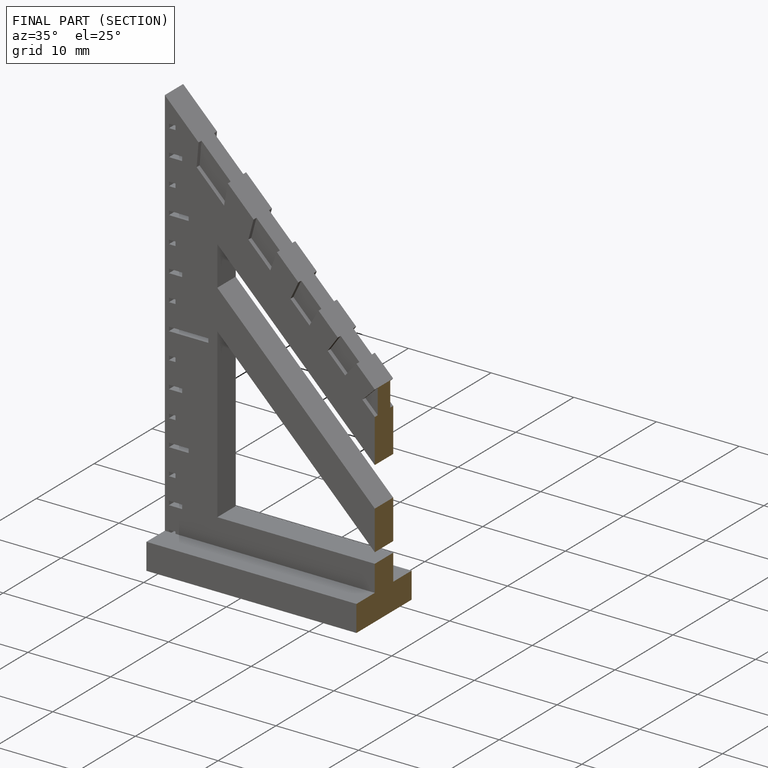
[diagram: finished part — half-section view (interior)]
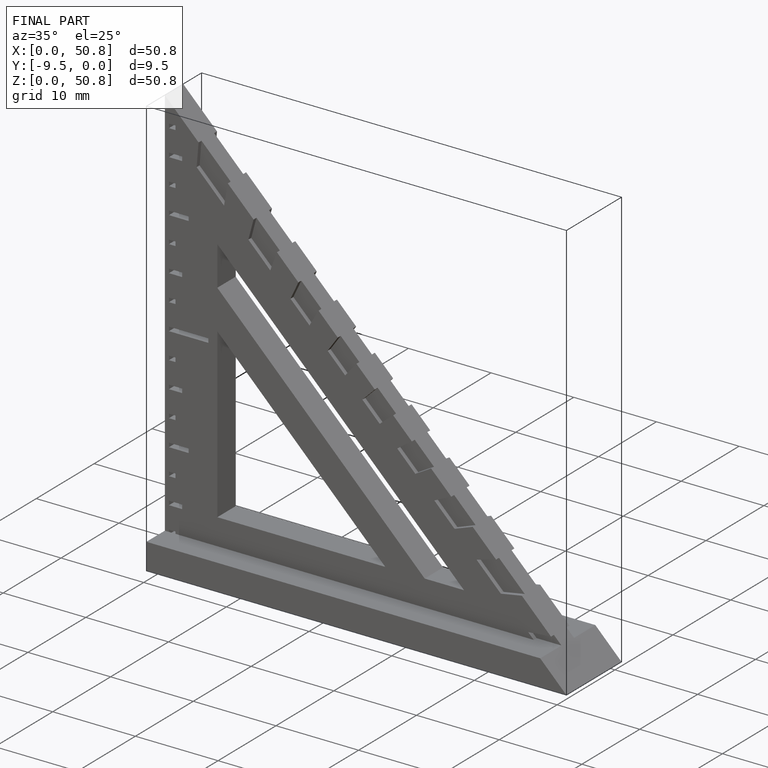
[diagram: finished part — iso view with bounding-box wireframe]
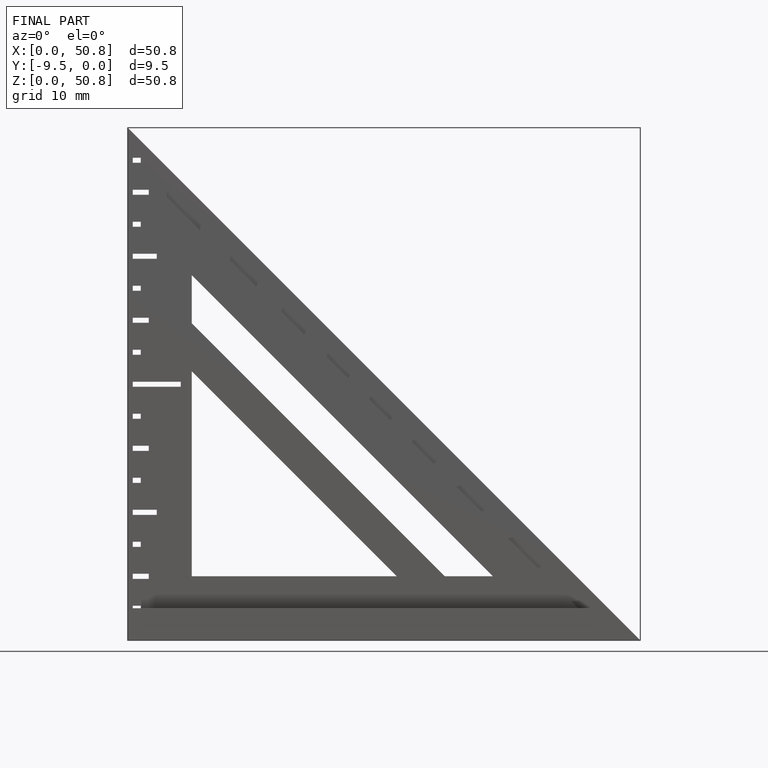
[diagram: finished part — front view with bounding-box wireframe]
